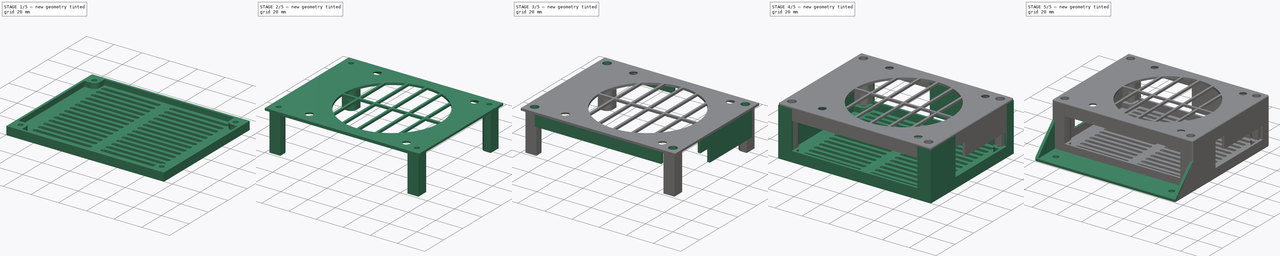
[diagram: build sequence overview — one tinted view per stage of 5, left to right]
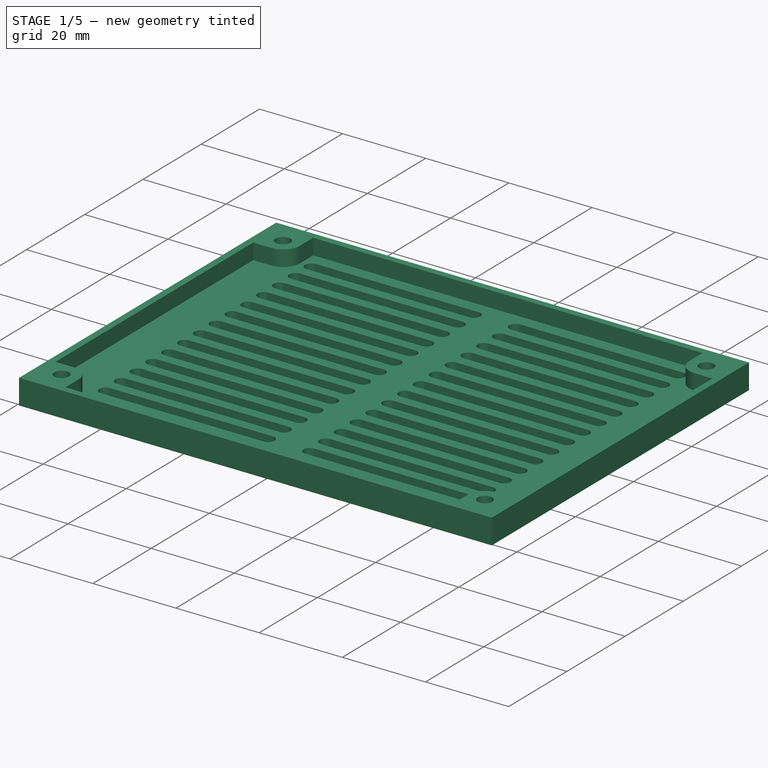
[diagram: stage 1 of 5 — iso view after this stage's code; geometry added in this stage tinted green]
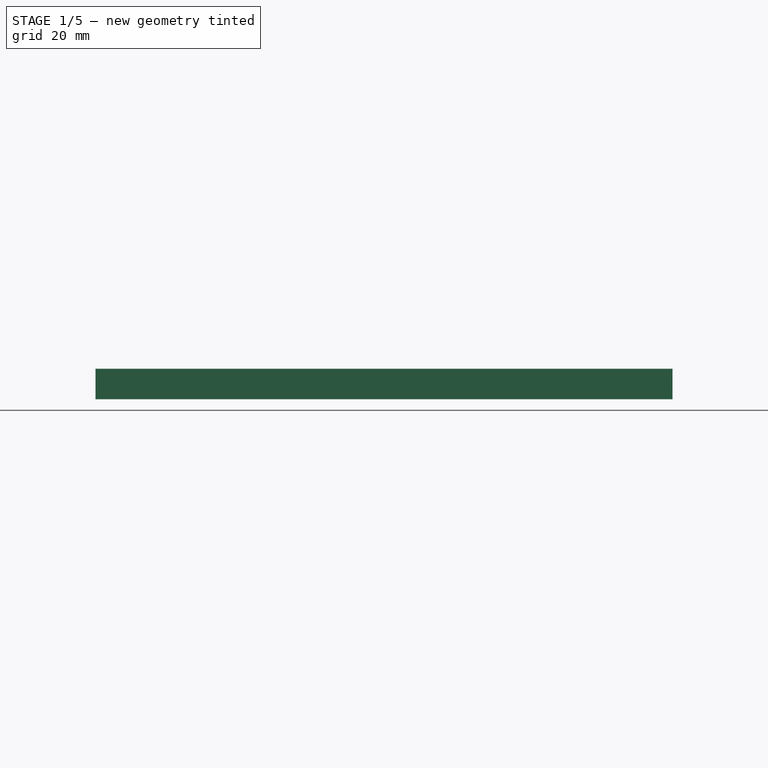
[diagram: stage 1 of 5 — front view after this stage's code; geometry added in this stage tinted green]
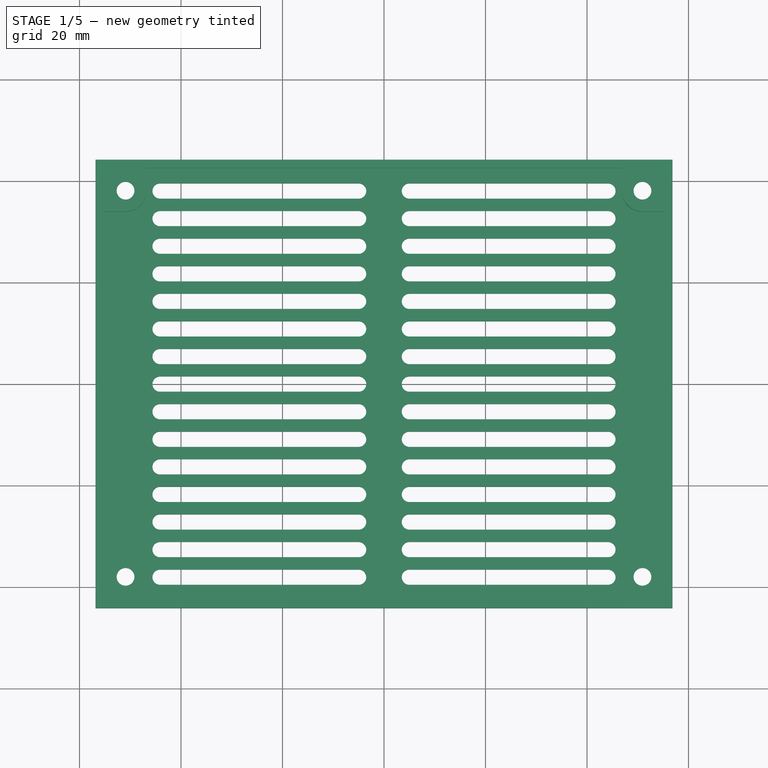
[diagram: stage 1 of 5 — top view after this stage's code; geometry added in this stage tinted green]
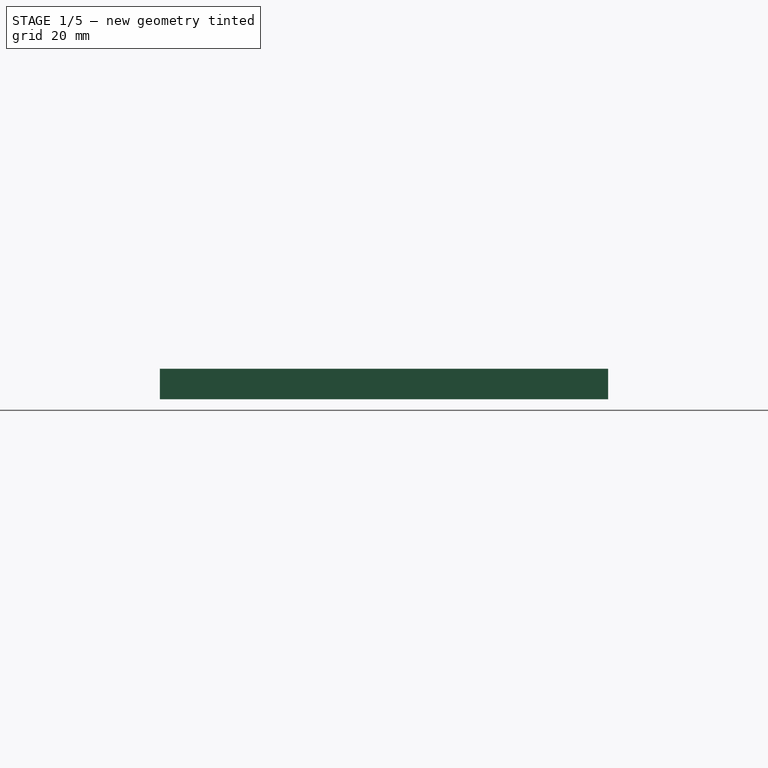
[diagram: stage 1 of 5 — right view after this stage's code; geometry added in this stage tinted green]
FCSTD DOCUMENT  (FreeCAD 0.18.3R)
Label: SKRCaseV6
License: All rights reserved
LicenseURL: http://en.wikipedia.org/wiki/All_rights_reserved
objects: Sketcher::SketchObject×21, PartDesign::Pad×13, PartDesign::Pocket×7, PartDesign::ShapeBinder×5, Spreadsheet::Sheet×2, PartDesign::Fillet×2, PartDesign::Body×2, PartDesign::LinearPattern×1, PartDesign::Chamfer×1, App::Part×1
note: 72 computed .brp shape members not serialized (recipe doc carries the construction recipe); baked Part::Feature solids carry a one-line shape summary decoded from their .brp

FEATURE [Sketcher::SketchObject] Sketch  label="B_Template_XY"
  MapMode = 5
  Support = -> [XY_Plane001]
  expr: Constraints[74] = Constraints.Rnut + 0.8mm
  expr: Constraints.Rnut = Screws.M3NutRadius
  sketch-geometry (62):
    g0: LineSegment StartX=-54.835 StartY=42.15 StartZ=0 EndX=54.835 EndY=42.15 EndZ=0
    g1: LineSegment StartX=54.835 StartY=42.15 StartZ=0 EndX=54.835 EndY=-42.15 EndZ=0
    g2: LineSegment StartX=54.835 StartY=-42.15 StartZ=0 EndX=-54.835 EndY=-42.15 EndZ=0
    g3: LineSegment StartX=-54.835 StartY=-42.15 StartZ=0 EndX=-54.835 EndY=42.15 EndZ=0
    g4: LineSegment StartX=-54.835 StartY=0 StartZ=0 EndX=54.835 EndY=0 EndZ=0
    g5: LineSegment StartX=0 StartY=42.15 StartZ=0 EndX=0 EndY=-42.15 EndZ=0
    g6: LineSegment StartX=-55.235 StartY=42.55 StartZ=0 EndX=55.235 EndY=42.55 EndZ=0
    g7: LineSegment StartX=55.235 StartY=42.55 StartZ=0 EndX=55.235 EndY=-42.55 EndZ=0
    g8: LineSegment StartX=55.235 StartY=-42.55 StartZ=0 EndX=-55.235 EndY=-42.55 EndZ=0
    g9: LineSegment StartX=-55.235 StartY=-42.55 StartZ=0 EndX=-55.235 EndY=42.55 EndZ=0
    g10: LineSegment [constr] StartX=0 StartY=42.15 StartZ=0 EndX=0 EndY=42.55 EndZ=0
    g11: LineSegment [constr] StartX=-54.835 StartY=0 StartZ=0 EndX=-55.235 EndY=0 EndZ=0
    g12: LineSegment [constr] StartX=0 StartY=-42.15 StartZ=0 EndX=0 EndY=-42.55 EndZ=0
    g13: LineSegment [constr] StartX=54.835 StartY=0 StartZ=0 EndX=55.235 EndY=0 EndZ=0
    g14: LineSegment StartX=-56.855 StartY=44.17 StartZ=0 EndX=56.855 EndY=44.17 EndZ=0
    g15: LineSegment StartX=56.855 StartY=44.17 StartZ=0 EndX=56.855 EndY=-44.17 EndZ=0
    g16: LineSegment StartX=56.855 StartY=-44.17 StartZ=0 EndX=-56.855 EndY=-44.17 EndZ=0
    g17: LineSegment StartX=-56.855 StartY=-44.17 StartZ=0 EndX=-56.855 EndY=44.17 EndZ=0
    g18: LineSegment [constr] StartX=0 StartY=42.55 StartZ=0 EndX=0 EndY=44.17 EndZ=0
    g19: LineSegment [constr] StartX=55.235 StartY=0 StartZ=0 EndX=56.855 EndY=0 EndZ=0
    g20: LineSegment [constr] StartX=0 StartY=-42.55 StartZ=0 EndX=0 EndY=-44.17 EndZ=0
    g21: LineSegment [constr] StartX=-55.235 StartY=0 StartZ=0 EndX=-56.855 EndY=0 EndZ=0
    g22: Circle CenterX=-50.925 CenterY=38.05 CenterZ=0 NormalX=0 NormalY=0 NormalZ=1 AngleXU=0 Radius=3.3
    g23: Circle CenterX=50.925 CenterY=38.05 CenterZ=0 NormalX=0 NormalY=0 NormalZ=1 AngleXU=0 Radius=3.3
    g24: Circle CenterX=50.925 CenterY=-38.05 CenterZ=0 NormalX=0 NormalY=0 NormalZ=1 AngleXU=0 Radius=3.3
    g25: Circle CenterX=-50.925 CenterY=-38.05 CenterZ=0 NormalX=0 NormalY=0 NormalZ=1 AngleXU=0 Radius=3.3
    g26: ArcOfCircle CenterX=-50.925 CenterY=38.05 CenterZ=0 NormalX=0 NormalY=0 NormalZ=1 AngleXU=0 Radius=4.1 StartAngle=4.71239 EndAngle=6.28319
    g27: ArcOfCircle CenterX=50.925 CenterY=38.05 CenterZ=0 NormalX=0 NormalY=0 NormalZ=1 AngleXU=0 Radius=4.1 StartAngle=3.14159 EndAngle=4.71239
    g28: ArcOfCircle CenterX=50.925 CenterY=-38.05 CenterZ=0 NormalX=0 NormalY=0 NormalZ=1 AngleXU=0 Radius=4.1 StartAngle=1.5708 EndAngle=3.14159
    g29: ArcOfCircle CenterX=-50.925 CenterY=-38.05 CenterZ=0 NormalX=0 NormalY=0 NormalZ=1 AngleXU=0 Radius=4.1 StartAngle=2e-16 EndAngle=1.5708
    g30: LineSegment [constr] StartX=-50.925 StartY=38.05 StartZ=0 EndX=-50.925 EndY=33.95 EndZ=0
    g31: LineSegment [constr] StartX=-50.925 StartY=38.05 StartZ=0 EndX=-46.825 EndY=38.05 EndZ=0
    g32: LineSegment [constr] StartX=50.925 StartY=38.05 StartZ=0 EndX=46.825 EndY=38.05 EndZ=0
    g33: LineSegment [constr] StartX=50.925 StartY=38.05 StartZ=0 EndX=50.925 EndY=33.95 EndZ=0
    g34: LineSegment [constr] StartX=50.925 StartY=-38.05 StartZ=0 EndX=50.925 EndY=-33.95 EndZ=0
    g35: LineSegment [constr] StartX=50.925 StartY=-38.05 StartZ=0 EndX=46.825 EndY=-38.05 EndZ=0
    g36: LineSegment [constr] StartX=-50.925 StartY=-38.05 StartZ=0 EndX=-50.925 EndY=-33.95 EndZ=0
    g37: LineSegment [constr] StartX=-50.925 StartY=-38.05 StartZ=0 EndX=-46.825 EndY=-38.05 EndZ=0
    g38: LineSegment StartX=-50.925 StartY=-33.95 StartZ=0 EndX=-55.235 EndY=-33.95 EndZ=0
    g39: LineSegment StartX=-46.825 StartY=-38.05 StartZ=0 EndX=-46.825 EndY=-42.55 EndZ=0
    g40: LineSegment StartX=46.825 StartY=-38.05 StartZ=0 EndX=46.825 EndY=-42.55 EndZ=0
    g41: LineSegment StartX=50.925 StartY=-33.95 StartZ=0 EndX=55.235 EndY=-33.95 EndZ=0
    g42: LineSegment StartX=50.925 StartY=33.95 StartZ=0 EndX=55.235 EndY=33.95 EndZ=0
    g43: LineSegment StartX=46.825 StartY=38.05 StartZ=0 EndX=46.825 EndY=42.55 EndZ=0
    g44: LineSegment StartX=-46.825 StartY=38.05 StartZ=0 EndX=-46.825 EndY=42.55 EndZ=0
    g45: LineSegment StartX=-50.925 StartY=33.95 StartZ=0 EndX=-55.235 EndY=33.95 EndZ=0
    g46: LineSegment StartX=-34.175 StartY=40 StartZ=0 EndX=45.825 EndY=40 EndZ=0
    g47: LineSegment StartX=45.825 StartY=40 StartZ=0 EndX=45.825 EndY=-40 EndZ=0
    g48: LineSegment StartX=45.825 StartY=-40 StartZ=0 EndX=-34.175 EndY=-40 EndZ=0
    g49: LineSegment StartX=-34.175 StartY=-40 StartZ=0 EndX=-34.175 EndY=40 EndZ=0
    g50: LineSegment [constr] StartX=-34.175 StartY=40 StartZ=0 EndX=45.825 EndY=-40 EndZ=0
    g51: LineSegment [constr] StartX=-34.175 StartY=-40 StartZ=0 EndX=45.825 EndY=40 EndZ=0
    g52: Circle CenterX=5.825 CenterY=2e-16 CenterZ=0 NormalX=0 NormalY=0 NormalZ=1 AngleXU=0 Radius=36
    g53: LineSegment [constr] StartX=-29.925 StartY=35.75 StartZ=0 EndX=41.575 EndY=35.75 EndZ=0
    g54: LineSegment [constr] StartX=41.575 StartY=35.75 StartZ=0 EndX=41.575 EndY=-35.75 EndZ=0
    g55: LineSegment [constr] StartX=41.575 StartY=-35.75 StartZ=0 EndX=-29.925 EndY=-35.75 EndZ=0
    g56: LineSegment [constr] StartX=-29.925 StartY=-35.75 StartZ=0 EndX=-29.925 EndY=35.75 EndZ=0
    g57: Circle CenterX=-29.925 CenterY=35.75 CenterZ=0 NormalX=0 NormalY=0 NormalZ=1 AngleXU=0 Radius=2.65
    g58: Circle CenterX=41.575 CenterY=35.75 CenterZ=0 NormalX=0 NormalY=0 NormalZ=1 AngleXU=0 Radius=2.65
    g59: Circle CenterX=41.575 CenterY=-35.75 CenterZ=0 NormalX=0 NormalY=0 NormalZ=1 AngleXU=0 Radius=2.65
    g60: Circle CenterX=-29.925 CenterY=-35.75 CenterZ=0 NormalX=0 NormalY=0 NormalZ=1 AngleXU=0 Radius=2.65
    g61: GeomPoint X=0 Y=0 Z=0
  constraints (173):
    c: Coincident(g0,g1)
    c: Coincident(g1,g2)
    c: Coincident(g2,g3)
    c: Coincident(g3,g0)
    c: Horizontal(g0)
    c: Horizontal(g2)
    c: Vertical(g1)
    c: Vertical(g3)
    c: DistanceX(g0,g0) = 109.67
    c: DistanceY(g3,g3) = 84.3
    c: PointOnObject(g4,g3)
    c: PointOnObject(g4,g1)
    c: PointOnObject(g5,g2)
    c: PointOnObject(g5,g0)
    c: Symmetric(g0,g0,g5)
    c: Symmetric(g2,g0,g4)
    c: Coincident(g6,g7)
    c: Coincident(g7,g8)
    c: Coincident(g8,g9)
    c: Coincident(g9,g6)
    c: Horizontal(g6)
    c: Horizontal(g8)
    c: Vertical(g7)
    c: Vertical(g9)
    c: Coincident(g10,g5)
    c: PointOnObject(g10,g6)
    c: Vertical(g10)
    c: Coincident(g11,g4)
    c: PointOnObject(g11,g9)
    c: Horizontal(g11)
    c: Coincident(g12,g5)
    c: PointOnObject(g12,g8)
    c: Vertical(g12)
    c: Coincident(g13,g4)
    c: PointOnObject(g13,g7)
    c: Horizontal(g13)
    c: Equal(g10,g11)
    c: Equal(g11,g12)
    c: Equal(g12,g13)
    c: DistanceX(g6,g0) = 0.4
    c: Coincident(g14,g15)
    c: Coincident(g15,g16)
    c: Coincident(g16,g17)
    c: Coincident(g17,g14)
    c: Horizontal(g14)
    c: Horizontal(g16)
    c: Vertical(g15)
    c: Vertical(g17)
    c: Coincident(g18,g10)
    c: PointOnObject(g18,g14)
    c: Vertical(g18)
    c: Coincident(g19,g13)
    c: PointOnObject(g19,g15)
    c: Horizontal(g19)
    c: Coincident(g20,g12)
    c: PointOnObject(g20,g16)
    c: Vertical(g20)
    c: Coincident(g21,g11)
    c: PointOnObject(g21,g17)
    c: Horizontal(g21)
    c: Equal(g18,g19)
    c: Equal(g19,g20)
    c: Equal(g20,g21)
    c: DistanceX(g14,g6) = 1.62  'WallThickness'
    c: Equal(g22,g23)
    c: Equal(g23,g24)
    c: Equal(g24,g25)
    c: Radius(g22) = 3.3  'Rnut'
    c: Symmetric(g22,g23,g5)
    c: Symmetric(g25,g24,g5)
    c: Symmetric(g25,g22,g4)
    c: DistanceX(g22,g23) = 101.85
    c: DistanceY(g25,g22) = 76.1  'ScrewShort'
    c: Coincident(g26,g22)
    c: Radius(g26) = 4.1
    c: Coincident(g27,g23)
    c: Coincident(g28,g24)
    c: Coincident(g29,g25)
    c: Equal(g26,g27)
    c: Equal(g27,g28)
    c: Equal(g28,g29)
    c: Coincident(g30,g26)
    c: Vertical(g30)
    c: Coincident(g31,g22)
    c: Coincident(g31,g26)
    c: Horizontal(g31)
    c: Coincident(g22,g30)
    c: Coincident(g32,g23)
    c: Coincident(g32,g27)
    c: Horizontal(g32)
    c: Coincident(g33,g23)
    c: Coincident(g33,g27)
    c: Vertical(g33)
    c: Coincident(g34,g24)
    c: Coincident(g34,g28)
    c: Vertical(g34)
    c: Coincident(g35,g24)
    c: Coincident(g35,g28)
    c: Horizontal(g35)
    c: Coincident(g36,g25)
    c: Coincident(g36,g29)
    c: Coincident(g37,g25)
    c: Coincident(g37,g29)
    c: Horizontal(g37)
    c: Vertical(g36)
    c: Coincident(g38,g29)
    c: Horizontal(g38)
    c: Coincident(g39,g29)
    c: Vertical(g39)
    c: Coincident(g40,g28)
    c: Vertical(g40)
    c: Coincident(g41,g28)
    c: Horizontal(g41)
    c: Coincident(g42,g27)
    c: Horizontal(g42)
    c: Coincident(g43,g27)
    c: Vertical(g43)
    c: Coincident(g44,g26)
    c: Vertical(g44)
    c: Coincident(g45,g26)
    c: Horizontal(g45)
    c: Coincident(g46,g47)
    c: Coincident(g47,g48)
    c: Coincident(g48,g49)
    c: Coincident(g49,g46)
    c: Horizontal(g46)
    c: Horizontal(g48)
    c: Vertical(g47)
    c: Equal(g46,g47)
    c: DistanceX(g46,g46) = 80
    c: Symmetric(g46,g48,g4)
    c: Coincident(g50,g46)
    c: Coincident(g50,g47)
    c: Coincident(g51,g48)
    c: Coincident(g51,g46)
    c: PointOnObject(g52,g50)
    c: PointOnObject(g52,g51)
    c: Radius(g52) = 36
    c: Coincident(g53,g54)
    c: Coincident(g54,g55)
    c: Coincident(g55,g56)
    c: Coincident(g56,g53)
    c: Horizontal(g53)
    c: Horizontal(g55)
    c: Vertical(g54)
    c: Vertical(g56)
    c: PointOnObject(g53,g50)
    c: PointOnObject(g54,g50)
    c: PointOnObject(g53,g51)
    c: DistanceX(g53,g53) = 71.5
    c: Coincident(g57,g53)
    c: Coincident(g58,g53)
    c: Coincident(g59,g54)
    c: Coincident(g60,g55)
    c: Equal(g57,g58)
    c: Equal(g58,g59)
    c: Equal(g59,g60)
    c: Radius(g57) = 2.65
    c: PointOnObject(g61,g5)
    c: PointOnObject(g61,g4)
    c: Coincident(g61,g-1)  '__ANCHOR__'
    c: PointOnObject(g45,g9)
    c: PointOnObject(g44,g6)
    c: PointOnObject(g43,g6)
    c: PointOnObject(g42,g7)
    c: PointOnObject(g40,g8)
    c: PointOnObject(g41,g7)
    c: PointOnObject(g38,g9)
    c: PointOnObject(g39,g8)
    c: DistanceX(g46,g43) = 1
    c: DistanceX(g14,g14) = 113.71  'Width'
    c: DistanceY(g17,g17) = 88.34  'Length'
    c: DistanceY(g0,g6) = 0.4  'PcbTolerance'
FEATURE [Spreadsheet::Sheet] Spreadsheet
  cells = B2=PcbThickness; C2(PcbThickness)==1.7mm
FEATURE [Spreadsheet::Sheet] Spreadsheet001  label="Screws"
  cells = B2=M3Radius; C2(M3Radius)==1.75mm; B3=M3HeadRadius; C3(M3HeadRadius)==2.9mm; B4=M3HeadHeight; C4(M3HeadHeight)==3mm; B5=M3WasherRadius; C5(M3WasherRadius)==3.6mm; B6=M3WasherHeight; C6(M3WasherHeight)==0.5mm; B7=M3NutRadius; C7(M3NutRadius)==3.3mm; B8=M3NutHeight; C8(M3NutHeight)==2.6mm; B9=M3NylocNutHeight; C9(M3NylocNutHeight)==4.1mm; B10=M3NutDuctWidth; C10(M3NutDuctWidth)==5.6mm; B11=M4Radius; C11(M4Radius)==2.2mm; B12=M4HeadRadius; C12(M4HeadRadius)==3.75mm; B13=M4HeadHeight; C13(M4HeadHeight)==4mm; B14=M4WasherRadius; C14(M4WasherRadius)==4.65mm; B15=M4NutRadius; C15(M4NutRadius)==4.2mm; B16=M4NutHeight; C16(M4NutHeight)==3.3mm; B17=M5Radius; C17(M5Radius)==2.66mm; B18=M5HeadRadius; C18(M5HeadRadius)==4.5mm; B19=M5HeadHeight; C19(M5HeadHeight)==5mm; B20=M5NutRadius; C20(M5NutRadius)==4.75mm; B21=M5NutHeight; C21(M5NutHeight)==4mm; B23=M6Radius; C23(M6Radius)==3.15mm; B24=M6HeadRadius; C24(M6HeadRadius)==5.5mm; B31=
FEATURE [Sketcher::SketchObject] Sketch001  label="B_Base"
  ExternalGeometry = -> [Sketch]
  MapMode = 5
  Support = -> [XY_Plane001]
  expr: Constraints[17] = Screws.M3Radius
  sketch-geometry (8):
    g0: LineSegment StartX=-56.855 StartY=44.17 StartZ=0 EndX=56.855 EndY=44.17 EndZ=0
    g1: LineSegment StartX=56.855 StartY=44.17 StartZ=0 EndX=56.855 EndY=-44.17 EndZ=0
    g2: LineSegment StartX=56.855 StartY=-44.17 StartZ=0 EndX=-56.855 EndY=-44.17 EndZ=0
    g3: LineSegment StartX=-56.855 StartY=-44.17 StartZ=0 EndX=-56.855 EndY=44.17 EndZ=0
    g4: Circle CenterX=-50.925 CenterY=38.05 CenterZ=0 NormalX=0 NormalY=0 NormalZ=1 AngleXU=0 Radius=1.75
    g5: Circle CenterX=50.925 CenterY=38.05 CenterZ=0 NormalX=0 NormalY=0 NormalZ=1 AngleXU=0 Radius=1.75
    g6: Circle CenterX=50.925 CenterY=-38.05 CenterZ=0 NormalX=0 NormalY=0 NormalZ=1 AngleXU=0 Radius=1.75
    g7: Circle CenterX=-50.925 CenterY=-38.05 CenterZ=0 NormalX=0 NormalY=0 NormalZ=1 AngleXU=0 Radius=1.75
  constraints (18):
    c: Coincident(g0,g1)
    c: Coincident(g1,g2)
    c: Coincident(g2,g3)
    c: Coincident(g3,g0)
    c: Horizontal(g0)
    c: Horizontal(g2)
    c: Vertical(g1)
    c: Vertical(g3)
    c: Coincident(g0,g-3)
    c: Coincident(g1,g-4)
    c: Coincident(g4,g-7)
    c: Coincident(g5,g-8)
    c: Coincident(g6,g-9)
    c: Coincident(g7,g-10)
    c: Equal(g4,g5)
    c: Equal(g5,g6)
    c: Equal(g6,g7)
    c: Radius(g4) = 1.75
FEATURE [PartDesign::Pad] Pad  label="B_Base_"
  Length = 2.2
  Length2 = 100
  Profile = -> Sketch001
  Type = 0
FEATURE [Sketcher::SketchObject] Sketch002  label="B_Breathing"
  ExternalGeometry = -> [Sketch]
  MapMode = 5
  Support = -> [XY_Plane001]
  sketch-geometry (10):
    g0: LineSegment [constr] StartX=-50.925 StartY=38.05 StartZ=0 EndX=50.925 EndY=38.05 EndZ=0
    g1: ArcOfCircle CenterX=-44.125 CenterY=38.05 CenterZ=0 NormalX=0 NormalY=0 NormalZ=1 AngleXU=0 Radius=1.5 StartAngle=1.5708 EndAngle=4.71239
    g2: ArcOfCircle CenterX=-5 CenterY=38.05 CenterZ=0 NormalX=0 NormalY=0 NormalZ=1 AngleXU=0 Radius=1.5 StartAngle=4.71239 EndAngle=7.85398
    g3: LineSegment StartX=-44.125 StartY=36.55 StartZ=0 EndX=-5 EndY=36.55 EndZ=0
    g4: LineSegment StartX=-44.125 StartY=39.55 StartZ=0 EndX=-5 EndY=39.55 EndZ=0
    g5: ArcOfCircle CenterX=5 CenterY=38.05 CenterZ=0 NormalX=0 NormalY=0 NormalZ=1 AngleXU=0 Radius=1.5 StartAngle=1.5708 EndAngle=4.71239
    g6: ArcOfCircle CenterX=44.125 CenterY=38.05 CenterZ=0 NormalX=0 NormalY=0 NormalZ=1 AngleXU=0 Radius=1.5 StartAngle=4.71239 EndAngle=7.85398
    g7: LineSegment StartX=5 StartY=36.55 StartZ=0 EndX=44.125 EndY=36.55 EndZ=0
    g8: LineSegment StartX=5 StartY=39.55 StartZ=0 EndX=44.125 EndY=39.55 EndZ=0
    g9: GeomPoint X=-45.625 Y=38.05 Z=0
  constraints (23):
    c: Coincident(g0,g-3)
    c: Coincident(g0,g-4)
    c: Tangent(g1,g4) = 1.5708
    c: Tangent(g1,g3) = -1.5708
    c: Tangent(g3,g2) = -1.5708
    c: Tangent(g4,g2) = 1.5708
    c: Horizontal(g3)
    c: Equal(g1,g2)
    c: PointOnObject(g1,g0)
    c: Tangent(g5,g8) = 1.5708
    c: Tangent(g5,g7) = -1.5708
    c: Tangent(g7,g6) = -1.5708
    c: Tangent(g8,g6) = 1.5708
    c: Horizontal(g7)
    c: Equal(g5,g6)
    c: Equal(g2,g5)
    c: Radius(g1) = 1.5
    c: Equal(g4,g8)
    c: DistanceX(g2,g5) = 10
    c: PointOnObject(g9,g1)
    c: PointOnObject(g9,g0)
    c: DistanceX(g-6,g9) = 1.2
    c: Symmetric(g2,g5,g-7)
FEATURE [PartDesign::Pocket] Pocket  label="B_Breathing_"
  BaseFeature = -> Pad
  Length = 5
  Length2 = 100
  Profile = -> Sketch002
  Reversed = true
  Type = 1
FEATURE [PartDesign::LinearPattern] LinearPattern
  BaseFeature = -> Pocket
  Direction = -> Sketch002 [V_Axis]
  Length = 76.1
  Occurrences = 15
  Originals = -> [Pocket]
  Reversed = true
  expr: Length = B_Template_XY.Constraints.ScrewShort
FEATURE [Sketcher::SketchObject] Sketch003  label="B_PcbSupport"
  AttachmentOffset = pos=(0,0,2.2) rot=(0,0,1;0rad)
  ExternalGeometry = -> [Sketch]
  MapMode = 5
  Placement = pos=(0,0,2.2) rot=(0,0,1;0rad)
  Support = -> [XY_Plane001]
  expr: Constraints[53] = Screws.M3Radius
  expr: AttachmentOffset.Base.z = B_Base_.Length
  sketch-geometry (24):
    g0: LineSegment StartX=-56.855 StartY=44.17 StartZ=0 EndX=56.855 EndY=44.17 EndZ=0
    g1: LineSegment StartX=56.855 StartY=44.17 StartZ=0 EndX=56.855 EndY=-44.17 EndZ=0
    g2: LineSegment StartX=56.855 StartY=-44.17 StartZ=0 EndX=-56.855 EndY=-44.17 EndZ=0
    g3: LineSegment StartX=-56.855 StartY=-44.17 StartZ=0 EndX=-56.855 EndY=44.17 EndZ=0
    g4: LineSegment StartX=-46.825 StartY=42.55 StartZ=0 EndX=46.825 EndY=42.55 EndZ=0
    g5: LineSegment StartX=55.235 StartY=33.95 StartZ=0 EndX=55.235 EndY=-33.95 EndZ=0
    g6: LineSegment StartX=-55.235 StartY=33.95 StartZ=0 EndX=-55.235 EndY=-33.95 EndZ=0
    g7: LineSegment StartX=-46.825 StartY=-42.55 StartZ=0 EndX=46.825 EndY=-42.55 EndZ=0
    g8: LineSegment StartX=-46.825 StartY=42.55 StartZ=0 EndX=-46.825 EndY=38.05 EndZ=0
    g9: LineSegment StartX=-55.235 StartY=33.95 StartZ=0 EndX=-50.925 EndY=33.95 EndZ=0
    g10: LineSegment StartX=46.825 StartY=42.55 StartZ=0 EndX=46.825 EndY=38.05 EndZ=0
    g11: LineSegment StartX=55.235 StartY=33.95 StartZ=0 EndX=50.925 EndY=33.95 EndZ=0
    g12: LineSegment StartX=50.925 StartY=-33.95 StartZ=0 EndX=55.235 EndY=-33.95 EndZ=0
    g13: LineSegment StartX=46.825 StartY=-42.55 StartZ=0 EndX=46.825 EndY=-38.05 EndZ=0
    g14: LineSegment StartX=-55.235 StartY=-33.95 StartZ=0 EndX=-50.925 EndY=-33.95 EndZ=0
    g15: LineSegment StartX=-46.825 StartY=-38.05 StartZ=0 EndX=-46.825 EndY=-42.55 EndZ=0
    g16: ArcOfCircle CenterX=-50.925 CenterY=-38.05 CenterZ=0 NormalX=0 NormalY=0 NormalZ=1 AngleXU=0 Radius=4.1 StartAngle=0 EndAngle=1.5708
    g17: ArcOfCircle CenterX=-50.925 CenterY=38.05 CenterZ=0 NormalX=0 NormalY=0 NormalZ=1 AngleXU=0 Radius=4.1 StartAngle=4.71239 EndAngle=6.28319
    g18: ArcOfCircle CenterX=50.925 CenterY=38.05 CenterZ=0 NormalX=0 NormalY=0 NormalZ=1 AngleXU=0 Radius=4.1 StartAngle=3.14159 EndAngle=4.71239
    g19: ArcOfCircle CenterX=50.925 CenterY=-38.05 CenterZ=0 NormalX=0 NormalY=0 NormalZ=1 AngleXU=0 Radius=4.1 StartAngle=1.5708 EndAngle=3.14159
    g20: Circle CenterX=-50.925 CenterY=38.05 CenterZ=0 NormalX=0 NormalY=0 NormalZ=1 AngleXU=0 Radius=1.75
    g21: Circle CenterX=50.925 CenterY=38.05 CenterZ=0 NormalX=0 NormalY=0 NormalZ=1 AngleXU=0 Radius=1.75
    g22: Circle CenterX=50.925 CenterY=-38.05 CenterZ=0 NormalX=0 NormalY=0 NormalZ=1 AngleXU=0 Radius=1.75
    g23: Circle CenterX=-50.925 CenterY=-38.05 CenterZ=0 NormalX=0 NormalY=0 NormalZ=1 AngleXU=0 Radius=1.75
  constraints (54):
    c: Coincident(g0,g1)
    c: Coincident(g1,g2)
    c: Coincident(g2,g3)
    c: Coincident(g3,g0)
    c: Horizontal(g0)
    c: Horizontal(g2)
    c: Vertical(g1)
    c: Vertical(g3)
    c: Coincident(g0,g-3)
    c: Coincident(g1,g-4)
    c: Coincident(g4,g-8)
    c: Coincident(g4,g-10)
    c: Coincident(g5,g-12)
    c: Coincident(g5,g-14)
    c: Coincident(g6,g-9)
    c: Coincident(g6,g-16)
    c: Coincident(g7,g-18)
    c: Coincident(g7,g-15)
    c: Coincident(g8,g4)
    c: Coincident(g8,g-8)
    c: Coincident(g9,g6)
    c: Coincident(g9,g-9)
    c: Coincident(g10,g4)
    c: Coincident(g10,g-11)
    c: Coincident(g11,g5)
    c: Coincident(g11,g-12)
    c: Coincident(g12,g-14)
    c: Coincident(g12,g5)
    c: Coincident(g13,g7)
    c: Coincident(g13,g-15)
    c: Coincident(g14,g6)
    c: Coincident(g14,g-17)
    c: Coincident(g15,g-18)
    c: Coincident(g15,g7)
    c: Coincident(g16,g-17)
    c: Coincident(g16,g14)
    c: Coincident(g16,g15)
    c: Coincident(g17,g-7)
    c: Coincident(g17,g9)
    c: Coincident(g17,g8)
    c: Coincident(g18,g-11)
    c: Coincident(g18,g10)
    c: Coincident(g18,g11)
    c: Coincident(g19,g-13)
    c: Coincident(g19,g12)
    c: Coincident(g19,g13)
    c: Coincident(g20,g17)
    c: Coincident(g21,g18)
    c: Coincident(g22,g19)
    c: Coincident(g23,g16)
    c: Equal(g20,g21)
    c: Equal(g21,g22)
    c: Equal(g22,g23)
    c: Radius(g20) = 1.75
FEATURE [PartDesign::Pad] Pad001  label="B_PcbSupport_"
  BaseFeature = -> LinearPattern
  Length = 3.82
  Length2 = 100
  Profile = -> Sketch003
  Type = 0
  expr: Length = 2.2mm + Sketch.Constraints.WallThickness
FEATURE [Sketcher::SketchObject] Sketch004  label="B_NutHoles"
  AttachmentOffset = pos=(0,0,4.4) rot=(0,0,1;0rad)
  ExternalGeometry = -> [Sketch]
  MapMode = 5
  Placement = pos=(0,0,4.4) rot=(0,0,1;0rad)
  Support = -> [XY_Plane001]
  expr: AttachmentOffset.Base.z = B_PcbSupport.Placement.Base.z + B_PcbSupport_.Length - B_Template_XY.Constraints.WallThickness
  sketch-geometry (28):
    g0: LineSegment StartX=-50.925 StartY=34.75 StartZ=0 EndX=-48.0671 EndY=36.4 EndZ=0
    g1: LineSegment StartX=-48.0671 StartY=36.4 StartZ=0 EndX=-48.0671 EndY=39.7 EndZ=0
    g2: LineSegment StartX=-48.0671 StartY=39.7 StartZ=0 EndX=-50.925 EndY=41.35 EndZ=0
    g3: LineSegment StartX=-50.925 StartY=41.35 StartZ=0 EndX=-53.7829 EndY=39.7 EndZ=0
    g4: LineSegment StartX=-53.7829 StartY=39.7 StartZ=0 EndX=-53.7829 EndY=36.4 EndZ=0
    g5: LineSegment StartX=-53.7829 StartY=36.4 StartZ=0 EndX=-50.925 EndY=34.75 EndZ=0
    g6: Circle [constr] CenterX=-50.925 CenterY=38.05 CenterZ=0 NormalX=0 NormalY=0 NormalZ=1 AngleXU=0 Radius=3.3
    g7: LineSegment StartX=50.925 StartY=34.75 StartZ=0 EndX=53.7829 EndY=36.4 EndZ=0
    g8: LineSegment StartX=53.7829 StartY=36.4 StartZ=0 EndX=53.7829 EndY=39.7 EndZ=0
    g9: LineSegment StartX=53.7829 StartY=39.7 StartZ=0 EndX=50.925 EndY=41.35 EndZ=0
    g10: LineSegment StartX=50.925 StartY=41.35 StartZ=0 EndX=48.0671 EndY=39.7 EndZ=0
    g11: LineSegment StartX=48.0671 StartY=39.7 StartZ=0 EndX=48.0671 EndY=36.4 EndZ=0
    g12: LineSegment StartX=48.0671 StartY=36.4 StartZ=0 EndX=50.925 EndY=34.75 EndZ=0
    g13: Circle [constr] CenterX=50.925 CenterY=38.05 CenterZ=0 NormalX=0 NormalY=0 NormalZ=1 AngleXU=0 Radius=3.3
    g14: LineSegment StartX=50.925 StartY=-41.35 StartZ=0 EndX=53.7829 EndY=-39.7 EndZ=0
    g15: LineSegment StartX=53.7829 StartY=-39.7 StartZ=0 EndX=53.7829 EndY=-36.4 EndZ=0
    g16: LineSegment StartX=53.7829 StartY=-36.4 StartZ=0 EndX=50.925 EndY=-34.75 EndZ=0
    g17: LineSegment StartX=50.925 StartY=-34.75 StartZ=0 EndX=48.0671 EndY=-36.4 EndZ=0
    g18: LineSegment StartX=48.0671 StartY=-36.4 StartZ=0 EndX=48.0671 EndY=-39.7 EndZ=0
    g19: LineSegment StartX=48.0671 StartY=-39.7 StartZ=0 EndX=50.925 EndY=-41.35 EndZ=0
    g20: Circle [constr] CenterX=50.925 CenterY=-38.05 CenterZ=0 NormalX=0 NormalY=0 NormalZ=1 AngleXU=0 Radius=3.3
    g21: LineSegment StartX=-50.925 StartY=-41.35 StartZ=0 EndX=-48.0671 EndY=-39.7 EndZ=0
    g22: LineSegment StartX=-48.0671 StartY=-39.7 StartZ=0 EndX=-48.0671 EndY=-36.4 EndZ=0
    g23: LineSegment StartX=-48.0671 StartY=-36.4 StartZ=0 EndX=-50.925 EndY=-34.75 EndZ=0
    g24: LineSegment StartX=-50.925 StartY=-34.75 StartZ=0 EndX=-53.7829 EndY=-36.4 EndZ=0
    g25: LineSegment StartX=-53.7829 StartY=-36.4 StartZ=0 EndX=-53.7829 EndY=-39.7 EndZ=0
    g26: LineSegment StartX=-53.7829 StartY=-39.7 StartZ=0 EndX=-50.925 EndY=-41.35 EndZ=0
    g27: Circle [constr] CenterX=-50.925 CenterY=-38.05 CenterZ=0 NormalX=0 NormalY=0 NormalZ=1 AngleXU=0 Radius=3.3
  constraints (64):
    c: Coincident(g0,g1)
    c: Coincident(g1,g2)
    c: Coincident(g2,g3)
    c: Coincident(g3,g4)
    c: Coincident(g4,g5)
    c: Coincident(g5,g0)
    c: Equal(g0, g1-g5) x5
    c: PointOnObject(g0,g6)
    c: PointOnObject(g1,g6)
    c: PointOnObject(g2,g6)
    c: PointOnObject(g3,g6)
    c: PointOnObject(g4,g6)
    c: PointOnObject(g5,g6)
    c: Coincident(g6,g-3)
    c: Coincident(g7,g8)
    c: Coincident(g8,g9)
    c: Coincident(g9,g10)
    c: Coincident(g10,g11)
    c: Coincident(g11,g12)
    c: Coincident(g12,g7)
    c: Equal(g7, g8-g12) x5
    c: PointOnObject(g7,g13)
    c: PointOnObject(g8,g13)
    c: PointOnObject(g9,g13)
    c: PointOnObject(g10,g13)
    c: PointOnObject(g11,g13)
    c: PointOnObject(g12,g13)
    c: Coincident(g13,g-4)
    c: Coincident(g14,g15)
    c: Coincident(g15,g16)
    c: Coincident(g16,g17)
    c: Coincident(g17,g18)
    c: Coincident(g18,g19)
    c: Coincident(g19,g14)
    c: Equal(g14, g15-g19) x5
    c: PointOnObject(g14,g20)
    c: PointOnObject(g15,g20)
    c: PointOnObject(g16,g20)
    c: PointOnObject(g17,g20)
    c: PointOnObject(g18,g20)
    c: PointOnObject(g19,g20)
    c: Coincident(g20,g-5)
    c: Coincident(g21,g22)
    c: Coincident(g22,g23)
    c: Coincident(g23,g24)
    c: Coincident(g24,g25)
    c: Coincident(g25,g26)
    c: Coincident(g26,g21)
    c: Equal(g21, g22-g26) x5
    c: PointOnObject(g21,g27)
    c: PointOnObject(g22,g27)
    c: PointOnObject(g23,g27)
    c: PointOnObject(g24,g27)
    c: PointOnObject(g25,g27)
    c: PointOnObject(g26,g27)
    c: Coincident(g27,g-6)
    c: Equal(g27,g6)
    c: Equal(g6,g13)
    c: Equal(g13,g20)
    c: Vertical(g4)
    c: Vertical(g8)
    c: Vertical(g15)
    c: Vertical(g22)
    c: Equal(g6,g-3)
FEATURE [PartDesign::Pocket] Pocket001  label="B_NutHoles_"
  BaseFeature = -> Pad001
  Length = 5
  Length2 = 100
  Profile = -> Sketch004
  Refine = true
  Type = 1
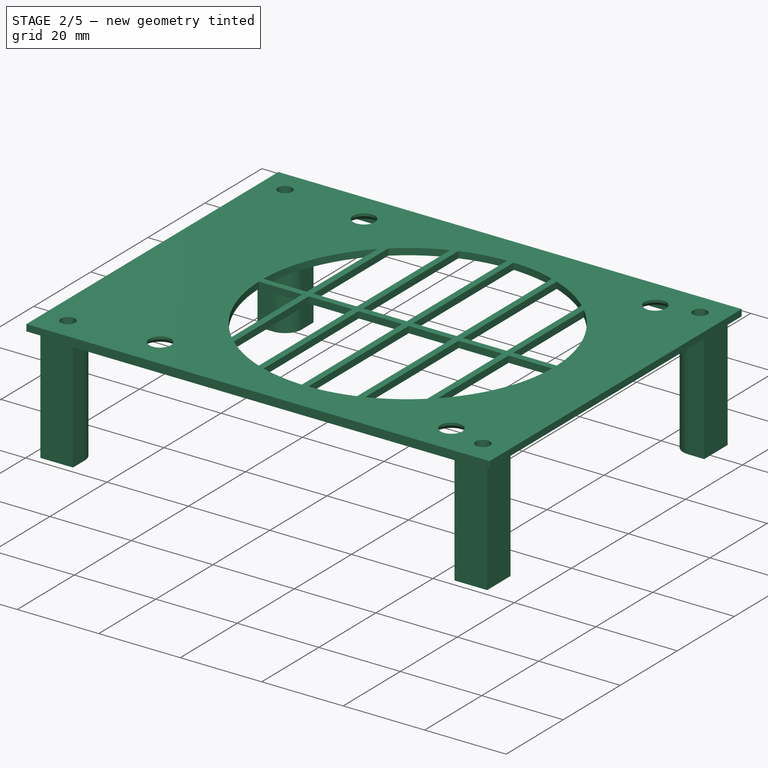
[diagram: stage 2 of 5 — iso view after this stage's code; geometry added in this stage tinted green]
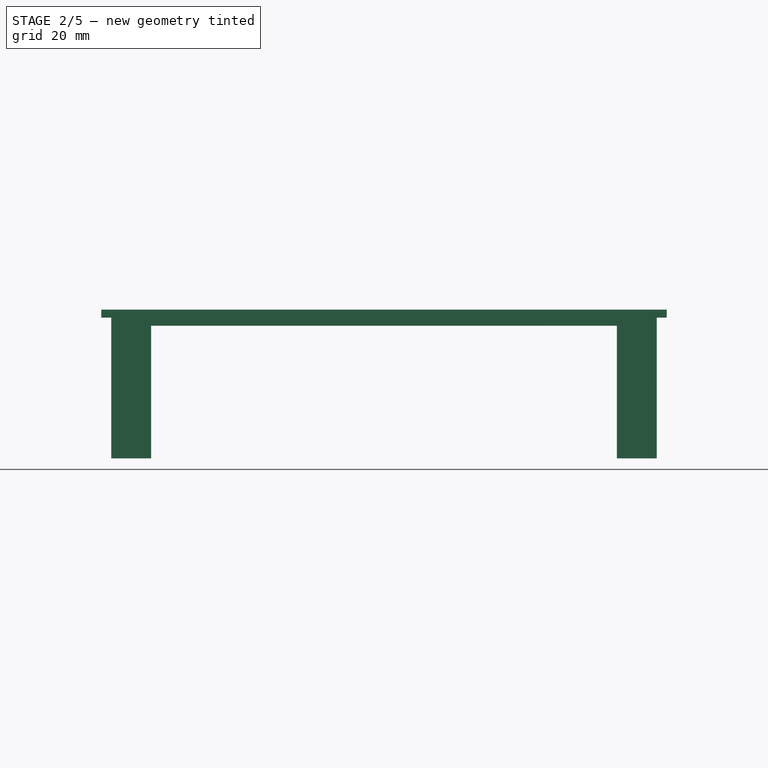
[diagram: stage 2 of 5 — front view after this stage's code; geometry added in this stage tinted green]
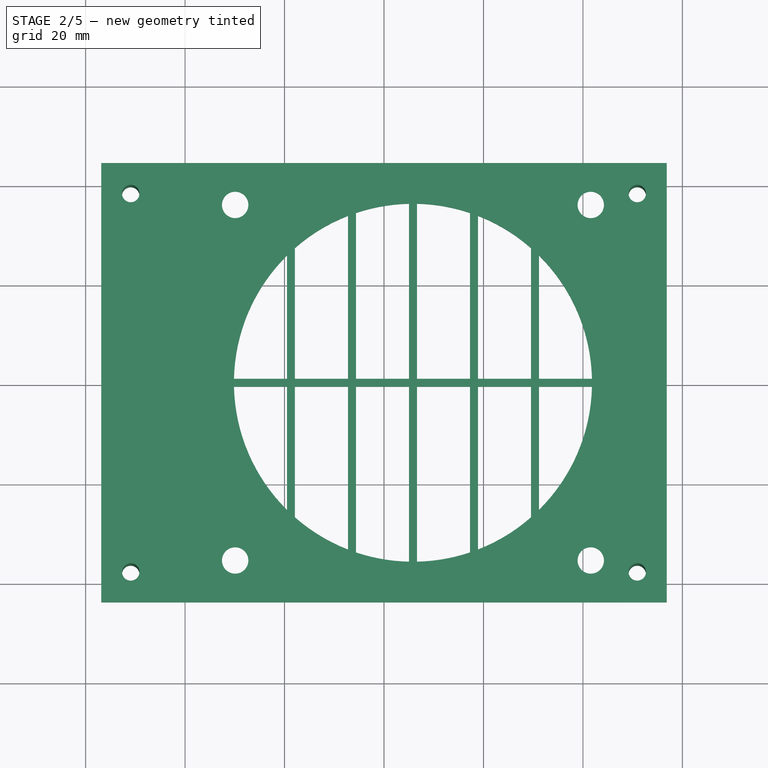
[diagram: stage 2 of 5 — top view after this stage's code; geometry added in this stage tinted green]
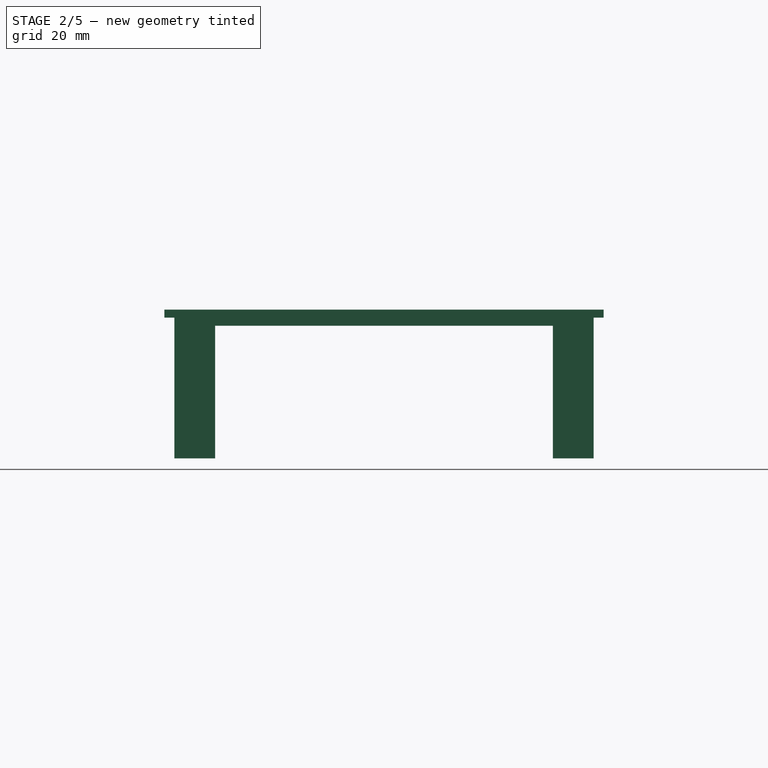
[diagram: stage 2 of 5 — right view after this stage's code; geometry added in this stage tinted green]
FEATURE [Sketcher::SketchObject] Sketch005  label="B_Walls"
  AttachmentOffset = pos=(0,0,6.02) rot=(0,0,1;0rad)
  ExternalGeometry = -> [Sketch]
  MapMode = 5
  Placement = pos=(0,0,6.02) rot=(0,0,1;0rad)
  Support = -> [XY_Plane001]
  expr: AttachmentOffset.Base.z = B_PcbSupport.Placement.Base.z + B_PcbSupport_.Length
  sketch-geometry (8):
    g0: LineSegment StartX=-56.855 StartY=44.17 StartZ=0 EndX=56.855 EndY=44.17 EndZ=0
    g1: LineSegment StartX=56.855 StartY=44.17 StartZ=0 EndX=56.855 EndY=-44.17 EndZ=0
    g2: LineSegment StartX=56.855 StartY=-44.17 StartZ=0 EndX=-56.855 EndY=-44.17 EndZ=0
    g3: LineSegment StartX=-56.855 StartY=-44.17 StartZ=0 EndX=-56.855 EndY=44.17 EndZ=0
    g4: LineSegment StartX=55.235 StartY=-42.55 StartZ=0 EndX=-55.235 EndY=-42.55 EndZ=0
    g5: LineSegment StartX=-55.235 StartY=-42.55 StartZ=0 EndX=-55.235 EndY=42.55 EndZ=0
    g6: LineSegment StartX=-55.235 StartY=42.55 StartZ=0 EndX=55.235 EndY=42.55 EndZ=0
    g7: LineSegment StartX=55.235 StartY=42.55 StartZ=0 EndX=55.235 EndY=-42.55 EndZ=0
  constraints (20):
    c: Coincident(g0,g1)
    c: Coincident(g1,g2)
    c: Coincident(g2,g3)
    c: Coincident(g3,g0)
    c: Horizontal(g0)
    c: Horizontal(g2)
    c: Vertical(g1)
    c: Vertical(g3)
    c: Coincident(g0,g-3)
    c: Coincident(g1,g-5)
    c: Coincident(g4,g5)
    c: Coincident(g5,g6)
    c: Coincident(g6,g7)
    c: Coincident(g7,g4)
    c: Horizontal(g4)
    c: Horizontal(g6)
    c: Vertical(g5)
    c: Vertical(g7)
    c: Coincident(g4,g-6)
    c: Coincident(g5,g-4)
FEATURE [PartDesign::Pad] Pad002  label="B_Walls_"
  BaseFeature = -> Pocket001
  Length = 30
  Length2 = 100
  Profile = -> Sketch005
  Refine = true
  Type = 0
  expr: Length = 30mm
FEATURE [PartDesign::Body] Body  label="Bottom"
  Group = -> [Sketch,Sketch001,Pad,Sketch002,Pocket,LinearPattern,Sketch003,Pad001,Sketch004,Pocket001,Sketch005,Pad002,Sketch006,Pocket002,Sketch007,Pocket003,Sketch008,Pocket004,Sketch009,Pocket005,Sketch010,Pad003,Sketch011,Pad004,Sketch012,Pad005,Fillet]
  Origin = -> Origin001
  Tip = -> Fillet
FEATURE [PartDesign::ShapeBinder] ShapeBinder  label="T_B_Template_XY"
  Support = -> [Sketch]
  TraceSupport = false
FEATURE [Sketcher::SketchObject] Sketch013  label="T_Base"
  AttachmentOffset = pos=(0,0,36.02) rot=(0,0,1;0rad)
  ExternalGeometry = -> [ShapeBinder]
  MapMode = 5
  Placement = pos=(0,0,36.02) rot=(0,0,1;0rad)
  Support = -> [XY_Plane002]
  expr: Constraints[17] = Screws.M3Radius
  expr: AttachmentOffset.Base.z = B_Walls.Placement.Base.z + B_Walls_.Length
  sketch-geometry (88):
    g0: LineSegment StartX=-56.855 StartY=44.17 StartZ=0 EndX=56.855 EndY=44.17 EndZ=0
    g1: LineSegment StartX=56.855 StartY=44.17 StartZ=0 EndX=56.855 EndY=-44.17 EndZ=0
    g2: LineSegment StartX=56.855 StartY=-44.17 StartZ=0 EndX=-56.855 EndY=-44.17 EndZ=0
    g3: LineSegment StartX=-56.855 StartY=-44.17 StartZ=0 EndX=-56.855 EndY=44.17 EndZ=0
    g4: Circle CenterX=-50.925 CenterY=38.05 CenterZ=0 NormalX=0 NormalY=0 NormalZ=1 AngleXU=0 Radius=1.75
    g5: Circle CenterX=50.925 CenterY=38.05 CenterZ=0 NormalX=0 NormalY=0 NormalZ=1 AngleXU=0 Radius=1.75
    g6: Circle CenterX=50.925 CenterY=-38.05 CenterZ=0 NormalX=0 NormalY=0 NormalZ=1 AngleXU=0 Radius=1.75
    g7: Circle CenterX=-50.925 CenterY=-38.05 CenterZ=0 NormalX=0 NormalY=0 NormalZ=1 AngleXU=0 Radius=1.75
    g8: Circle CenterX=-29.925 CenterY=35.75 CenterZ=0 NormalX=0 NormalY=0 NormalZ=1 AngleXU=0 Radius=2.65
    g9: Circle CenterX=41.575 CenterY=35.75 CenterZ=0 NormalX=0 NormalY=0 NormalZ=1 AngleXU=0 Radius=2.65
    g10: Circle CenterX=41.575 CenterY=-35.75 CenterZ=0 NormalX=0 NormalY=0 NormalZ=1 AngleXU=0 Radius=2.65
    g11: Circle CenterX=-29.925 CenterY=-35.75 CenterZ=0 NormalX=0 NormalY=0 NormalZ=1 AngleXU=0 Radius=2.65
    g12: LineSegment [constr] StartX=-30.175 StartY=44.17 StartZ=0 EndX=-30.175 EndY=-44.17 EndZ=0
    g13: LineSegment [constr] StartX=41.825 StartY=44.17 StartZ=0 EndX=41.825 EndY=-44.17 EndZ=0
    g14: LineSegment StartX=-19.5083 StartY=25.5778 StartZ=0 EndX=-19.5083 EndY=0.8 EndZ=0
    g15: LineSegment StartX=-17.9083 StartY=27.069 StartZ=0 EndX=-17.9083 EndY=-27.069 EndZ=0
    g16: ArcOfCircle CenterX=5.825 CenterY=2e-16 CenterZ=0 NormalX=0 NormalY=0 NormalZ=1 AngleXU=0 Radius=36 StartAngle=1.94224 EndAngle=2.29063
    g17: ArcOfCircle CenterX=5.825 CenterY=2e-16 CenterZ=0 NormalX=0 NormalY=0 NormalZ=1 AngleXU=0 Radius=36 StartAngle=3.99256 EndAngle=4.34094
    g18: LineSegment StartX=-7.24167 StartY=33.5449 StartZ=0 EndX=-7.24167 EndY=0.8 EndZ=0
    g19: LineSegment [constr] StartX=5.825 StartY=44.17 StartZ=0 EndX=5.825 EndY=-44.17 EndZ=0
    g20: LineSegment StartX=-5.64167 StartY=34.125 StartZ=0 EndX=-5.64167 EndY=0.8 EndZ=0
    g21: LineSegment [constr] StartX=-19.5083 StartY=25.5778 StartZ=0 EndX=-17.9083 EndY=25.5778 EndZ=0
    g22: LineSegment [constr] StartX=-19.5083 StartY=25.5778 StartZ=0 EndX=-30.175 EndY=25.5778 EndZ=0
    g23: LineSegment [constr] StartX=-17.9083 StartY=25.5778 StartZ=0 EndX=-7.24167 EndY=25.5778 EndZ=0
    g24: ArcOfCircle CenterX=5.825 CenterY=2e-16 CenterZ=0 NormalX=0 NormalY=0 NormalZ=1 AngleXU=0 Radius=36 StartAngle=1.59302 EndAngle=1.89496
    g25: ArcOfCircle CenterX=5.825 CenterY=2e-16 CenterZ=0 NormalX=0 NormalY=0 NormalZ=1 AngleXU=0 Radius=36 StartAngle=4.38822 EndAngle=4.69016
    g26: LineSegment StartX=5.025 StartY=35.9911 StartZ=0 EndX=5.025 EndY=0.8 EndZ=0
    g27: LineSegment StartX=6.625 StartY=35.9911 StartZ=0 EndX=6.625 EndY=0.8 EndZ=0
    g28: ArcOfCircle CenterX=5.825 CenterY=2e-16 CenterZ=0 NormalX=0 NormalY=0 NormalZ=1 AngleXU=0 Radius=36 StartAngle=1.24663 EndAngle=1.54857
    g29: ArcOfCircle CenterX=5.825 CenterY=2e-16 CenterZ=0 NormalX=0 NormalY=0 NormalZ=1 AngleXU=0 Radius=36 StartAngle=4.73461 EndAngle=5.03656
    g30: LineSegment StartX=17.2917 StartY=34.125 StartZ=0 EndX=17.2917 EndY=0.8 EndZ=0
    g31: LineSegment [constr] StartX=-7.24167 StartY=25.5778 StartZ=0 EndX=-5.64167 EndY=25.5778 EndZ=0
    g32: LineSegment [constr] StartX=-5.64167 StartY=25.5778 StartZ=0 EndX=5.025 EndY=25.5778 EndZ=0
    g33: LineSegment [constr] StartX=5.025 StartY=25.5778 StartZ=0 EndX=6.625 EndY=25.5778 EndZ=0
    g34: LineSegment [constr] StartX=6.625 StartY=25.5778 StartZ=0 EndX=17.2917 EndY=25.5778 EndZ=0
    g35: LineSegment StartX=18.8917 StartY=33.5449 StartZ=0 EndX=18.8917 EndY=0.8 EndZ=0
    g36: ArcOfCircle CenterX=5.825 CenterY=2e-16 CenterZ=0 NormalX=0 NormalY=0 NormalZ=1 AngleXU=0 Radius=36 StartAngle=0.850963 EndAngle=1.19935
    g37: ArcOfCircle CenterX=5.825 CenterY=2e-16 CenterZ=0 NormalX=0 NormalY=0 NormalZ=1 AngleXU=0 Radius=36 StartAngle=5.08383 EndAngle=5.43222
    g38: LineSegment StartX=29.5583 StartY=27.069 StartZ=0 EndX=29.5583 EndY=0.8 EndZ=0
    g39: LineSegment StartX=31.1583 StartY=25.5778 StartZ=0 EndX=31.1583 EndY=0.8 EndZ=0
    g40: LineSegment [constr] StartX=17.2917 StartY=25.5778 StartZ=0 EndX=18.8917 EndY=25.5778 EndZ=0
    g41: LineSegment [constr] StartX=18.8917 StartY=25.5778 StartZ=0 EndX=29.5583 EndY=25.5778 EndZ=0
    g42: LineSegment [constr] StartX=29.5583 StartY=25.5778 StartZ=0 EndX=31.1583 EndY=25.5778 EndZ=0
    g43: LineSegment StartX=-30.1661 StartY=0.8 StartZ=0 EndX=-19.5083 EndY=0.8 EndZ=0
    g44: LineSegment StartX=-30.1661 StartY=-0.8 StartZ=0 EndX=-19.5083 EndY=-0.8 EndZ=0
    g45: LineSegment [constr] StartX=-56.855 StartY=2e-16 StartZ=0 EndX=56.855 EndY=2e-16 EndZ=0
    g46: LineSegment StartX=-19.5083 StartY=-0.8 StartZ=0 EndX=-19.5083 EndY=-25.5778 EndZ=0
    g47: LineSegment [constr] StartX=-19.5083 StartY=0.8 StartZ=0 EndX=-19.5083 EndY=-0.8 EndZ=0
    g48: ArcOfCircle CenterX=5.825 CenterY=2e-16 CenterZ=0 NormalX=0 NormalY=0 NormalZ=1 AngleXU=0 Radius=36 StartAngle=2.35139 EndAngle=3.11937
    g49: ArcOfCircle CenterX=5.825 CenterY=2e-16 CenterZ=0 NormalX=0 NormalY=0 NormalZ=1 AngleXU=0 Radius=36 StartAngle=3.16382 EndAngle=3.93179
    g50: LineSegment [constr] StartX=-19.5083 StartY=0.8 StartZ=0 EndX=-17.9083 EndY=0.8 EndZ=0
    g51: LineSegment [constr] StartX=-19.5083 StartY=-0.8 StartZ=0 EndX=-17.9083 EndY=-0.8 EndZ=0
    g52: LineSegment StartX=-17.9083 StartY=0.8 StartZ=0 EndX=-7.24167 EndY=0.8 EndZ=0
    g53: LineSegment StartX=-17.9083 StartY=-0.8 StartZ=0 EndX=-7.24167 EndY=-0.8 EndZ=0
    g54: LineSegment [constr] StartX=-7.24167 StartY=0.8 StartZ=0 EndX=-5.64167 EndY=0.8 EndZ=0
    g55: LineSegment [constr] StartX=-7.24167 StartY=-0.8 StartZ=0 EndX=-5.64167 EndY=-0.8 EndZ=0
    g56: LineSegment StartX=-5.64167 StartY=-0.8 StartZ=0 EndX=5.025 EndY=-0.8 EndZ=0
    g57: LineSegment StartX=-5.64167 StartY=0.8 StartZ=0 EndX=5.025 EndY=0.8 EndZ=0
    g58: LineSegment StartX=-7.24167 StartY=-0.8 StartZ=0 EndX=-7.24167 EndY=-33.5449 EndZ=0
    g59: LineSegment StartX=-5.64167 StartY=-0.8 StartZ=0 EndX=-5.64167 EndY=-34.125 EndZ=0
    g60: LineSegment StartX=5.025 StartY=-0.8 StartZ=0 EndX=5.025 EndY=-35.9911 EndZ=0
    g61: LineSegment [constr] StartX=-7.24167 StartY=0.8 StartZ=0 EndX=-7.24167 EndY=-0.8 EndZ=0
    g62: LineSegment [constr] StartX=-5.64167 StartY=0.8 StartZ=0 EndX=-5.64167 EndY=-0.8 EndZ=0
    g63: LineSegment [constr] StartX=5.025 StartY=0.8 StartZ=0 EndX=5.025 EndY=-0.8 EndZ=0
    g64: LineSegment [constr] StartX=5.025 StartY=0.8 StartZ=0 EndX=6.625 EndY=0.8 EndZ=0
    g65: LineSegment [constr] StartX=5.025 StartY=-0.8 StartZ=0 EndX=6.625 EndY=-0.8 EndZ=0
    g66: LineSegment StartX=6.625 StartY=0.8 StartZ=0 EndX=17.2917 EndY=0.8 EndZ=0
    g67: LineSegment StartX=6.625 StartY=-0.8 StartZ=0 EndX=17.2917 EndY=-0.8 EndZ=0
    g68: LineSegment StartX=6.625 StartY=-0.8 StartZ=0 EndX=6.625 EndY=-35.9911 EndZ=0
    g69: LineSegment [constr] StartX=6.625 StartY=0.8 StartZ=0 EndX=6.625 EndY=-0.8 EndZ=0
    g70: LineSegment [constr] StartX=17.2917 StartY=0.8 StartZ=0 EndX=18.8917 EndY=0.8 EndZ=0
    g71: LineSegment [constr] StartX=17.2917 StartY=-0.8 StartZ=0 EndX=18.8917 EndY=-0.8 EndZ=0
    g72: LineSegment StartX=17.2917 StartY=-0.8 StartZ=0 EndX=17.2917 EndY=-34.125 EndZ=0
    g73: LineSegment StartX=18.8917 StartY=-0.8 StartZ=0 EndX=18.8917 EndY=-33.5449 EndZ=0
    g74: LineSegment [constr] StartX=17.2917 StartY=0.8 StartZ=0 EndX=17.2917 EndY=-0.8 EndZ=0
    g75: LineSegment [constr] StartX=18.8917 StartY=0.8 StartZ=0 EndX=18.8917 EndY=-0.8 EndZ=0
    g76: LineSegment StartX=18.8917 StartY=0.8 StartZ=0 EndX=29.5583 EndY=0.8 EndZ=0
    g77: LineSegment StartX=18.8917 StartY=-0.8 StartZ=0 EndX=29.5583 EndY=-0.8 EndZ=0
    g78: LineSegment [constr] StartX=29.5583 StartY=-0.8 StartZ=0 EndX=31.1583 EndY=-0.8 EndZ=0
    g79: LineSegment [constr] StartX=29.5583 StartY=0.8 StartZ=0 EndX=31.1583 EndY=0.8 EndZ=0
    g80: LineSegment StartX=31.1583 StartY=0.8 StartZ=0 EndX=41.8161 EndY=0.8 EndZ=0
    g81: LineSegment StartX=31.1583 StartY=-0.8 StartZ=0 EndX=41.8161 EndY=-0.8 EndZ=0
    g82: LineSegment StartX=29.5583 StartY=-0.8 StartZ=0 EndX=29.5583 EndY=-27.069 EndZ=0
    g83: LineSegment StartX=31.1583 StartY=-0.8 StartZ=0 EndX=31.1583 EndY=-25.5778 EndZ=0
    g84: LineSegment [constr] StartX=29.5583 StartY=0.8 StartZ=0 EndX=29.5583 EndY=-0.8 EndZ=0
    g85: LineSegment [constr] StartX=31.1583 StartY=0.8 StartZ=0 EndX=31.1583 EndY=-0.8 EndZ=0
    g86: ArcOfCircle CenterX=5.825 CenterY=2e-16 CenterZ=0 NormalX=0 NormalY=0 NormalZ=1 AngleXU=0 Radius=36 StartAngle=0.0222241 EndAngle=0.790199
    g87: ArcOfCircle CenterX=5.825 CenterY=2e-16 CenterZ=0 NormalX=0 NormalY=0 NormalZ=1 AngleXU=0 Radius=36 StartAngle=5.49299 EndAngle=6.26096
  constraints (229):
    c: Coincident(g0,g1)
    c: Coincident(g1,g2)
    c: Coincident(g2,g3)
    c: Coincident(g3,g0)
    c: Horizontal(g0)
    c: Horizontal(g2)
    c: Vertical(g1)
    c: Vertical(g3)
    c: Coincident(g0,g-3)
    c: Coincident(g1,g-4)
    c: Coincident(g4,g-6)
    c: Coincident(g5,g-9)
    c: Coincident(g6,g-10)
    c: Coincident(g7,g-11)
    c: Equal(g4,g5)
    c: Equal(g5,g6)
    c: Equal(g6,g7)
    c: Radius(g4) = 1.75
    c: Coincident(g8,g-7)
    c: Coincident(g9,g-8)
    c: Coincident(g10,g-13)
    c: Coincident(g11,g-12)
    c: Equal(g8,g9)
    c: Equal(g9,g10)
    c: Equal(g10,g11)
    c: Equal(g8,g-7)
    c: PointOnObject(g46,g-5)
    c: PointOnObject(g12,g0)
    c: PointOnObject(g12,g2)
    c: Vertical(g12)
    c: PointOnObject(g13,g0)
    c: PointOnObject(g13,g2)
    c: Vertical(g13)
    c: Tangent(g13,g-5)
    c: Vertical(g14)
    c: PointOnObject(g15,g-5)
    c: PointOnObject(g15,g-5)
    c: Vertical(g15)
    c: Coincident(g16,g15)
    c: Coincident(g17,g15)
    c: Coincident(g18,g16)
    c: Coincident(g58,g17)
    c: Vertical(g18)
    c: PointOnObject(g19,g0)
    c: PointOnObject(g19,g2)
    c: Vertical(g19)
    c: PointOnObject(g20,g-5)
    c: PointOnObject(g59,g-5)
    c: Vertical(g20)
    c: PointOnObject(g21,g15)
    c: Horizontal(g21)
    c: PointOnObject(g22,g12)
    c: Horizontal(g22)
    c: Coincident(g23,g21)
    c: PointOnObject(g23,g18)
    c: Horizontal(g23)
    c: Equal(g23,g22)
    c: Coincident(g24,g20)
    c: Coincident(g25,g59)
    c: Coincident(g26,g24)
    c: Coincident(g60,g25)
    c: Vertical(g26)
    c: DistanceX(g14,g15) = 1.6
    c: PointOnObject(g68,g-5)
    c: Vertical(g27)
    c: Symmetric(g24,g27,g19)
    c: Coincident(g28,g27)
    c: Coincident(g29,g68)
    c: Coincident(g30,g28)
    c: Coincident(g72,g29)
    c: Vertical(g30)
    c: Coincident(g23,g31)
    c: PointOnObject(g31,g20)
    c: Horizontal(g31)
    c: Coincident(g31,g32)
    c: PointOnObject(g32,g26)
    c: Horizontal(g32)
    c: Coincident(g32,g33)
    c: PointOnObject(g33,g27)
    c: Horizontal(g33)
    c: Coincident(g33,g34)
    c: PointOnObject(g34,g30)
    c: Horizontal(g34)
    c: Equal(g21,g31)
    c: Equal(g31,g33)
    c: Equal(g23,g32)
    c: Equal(g32,g34)
    c: PointOnObject(g35,g-5)
    c: PointOnObject(g73,g-5)
    c: Vertical(g35)
    c: Coincident(g36,g35)
    c: Coincident(g37,g73)
    c: Coincident(g38,g36)
    c: Coincident(g82,g37)
    c: Vertical(g38)
    c: PointOnObject(g39,g-5)
    c: Vertical(g39)
    c: Coincident(g34,g40)
    c: PointOnObject(g40,g35)
    c: Horizontal(g40)
    c: Coincident(g40,g41)
    c: PointOnObject(g41,g38)
    c: Horizontal(g41)
    c: Coincident(g41,g42)
    c: Coincident(g42,g39)
    c: Horizontal(g42)
    c: Equal(g33,g40)
    c: Equal(g40,g42)
    c: Horizontal(g43)
    c: PointOnObject(g44,g14)
    c: Horizontal(g44)
    c: PointOnObject(g45,g3)
    c: PointOnObject(g45,g1)
    c: Coincident(g14,g43)
    c: Tangent(g14,g46)
    c: PointOnObject(g46,g44)
    c: Coincident(g47,g14)
    c: Coincident(g47,g44)
    c: Coincident(g48,g16)
    c: Coincident(g48,g14)
    c: Coincident(g48,g43)
    c: Coincident(g49,g16)
    c: Coincident(g49,g44)
    c: Coincident(g49,g46)
    c: Equal(g47,g21)
    c: Symmetric(g14,g44,g45)
    c: Tangent(g-5,g12)
    c: PointOnObject(g43,g-5)
    c: Coincident(g21,g22)
    c: Coincident(g21,g14)
    c: Coincident(g16,g17)
    c: Coincident(g16,g24)
    c: Coincident(g16,g25)
    c: Coincident(g16,g28)
    c: Coincident(g16,g29)
    c: Coincident(g16,g36)
    c: Coincident(g16,g37)
    c: Coincident(g16,g-5)
    c: PointOnObject(g16,g45)
    c: PointOnObject(g16,g19)
    c: Coincident(g50,g14)
    c: PointOnObject(g50,g15)
    c: Horizontal(g50)
    c: Coincident(g51,g44)
    c: PointOnObject(g51,g15)
    c: Horizontal(g51)
    c: Coincident(g52,g50)
    c: Horizontal(g52)
    c: Coincident(g53,g51)
    c: Horizontal(g53)
    c: Horizontal(g54)
    c: Coincident(g55,g53)
    c: Horizontal(g55)
    c: Horizontal(g56)
    c: Horizontal(g57)
    c: Coincident(g18,g52)
    c: Tangent(g18,g58)
    c: Coincident(g59,g55)
    c: Tangent(g20,g59)
    c: Coincident(g20,g54)
    c: Coincident(g26,g57)
    c: Tangent(g26,g60)
    c: Coincident(g61,g18)
    c: Coincident(g61,g53)
    c: Coincident(g62,g20)
    c: Coincident(g62,g55)
    c: Coincident(g63,g26)
    c: Coincident(g63,g56)
    c: Coincident(g55,g56)
    c: Coincident(g18,g54)
    c: Coincident(g20,g57)
    c: Coincident(g64,g26)
    c: Horizontal(g64)
    c: Coincident(g65,g56)
    c: Horizontal(g65)
    c: Horizontal(g66)
    c: Coincident(g67,g65)
    c: Horizontal(g67)
    c: Coincident(g27,g64)
    c: Tangent(g27,g68)
    c: Coincident(g69,g27)
    c: Coincident(g69,g68)
    c: Horizontal(g70)
    c: Coincident(g71,g67)
    c: Horizontal(g71)
    c: Coincident(g30,g66)
    c: Tangent(g30,g72)
    c: Coincident(g35,g70)
    c: Tangent(g35,g73)
    c: Coincident(g74,g30)
    c: Coincident(g74,g72)
    c: Coincident(g75,g35)
    c: Coincident(g75,g73)
    c: Coincident(g30,g70)
    c: Coincident(g71,g73)
    c: Coincident(g67,g72)
    c: Coincident(g65,g68)
    c: Coincident(g27,g66)
    c: Coincident(g56,g60)
    c: Coincident(g53,g58)
    c: Coincident(g76,g35)
    c: Horizontal(g76)
    c: Coincident(g77,g73)
    c: Horizontal(g77)
    c: Coincident(g78,g77)
    c: Horizontal(g78)
    c: Horizontal(g79)
    c: Horizontal(g80)
    c: PointOnObject(g81,g-5)
    c: Horizontal(g81)
    c: Coincident(g38,g76)
    c: Tangent(g38,g82)
    c: Coincident(g83,g78)
    c: Tangent(g39,g83)
    c: Coincident(g39,g79)
    c: Coincident(g84,g38)
    c: Coincident(g84,g82)
    c: Coincident(g85,g39)
    c: Coincident(g85,g81)
    c: Coincident(g78,g81)
    c: Coincident(g39,g80)
    c: Coincident(g38,g79)
    c: Coincident(g77,g82)
    c: Coincident(g86,g16)
    c: Coincident(g86,g39)
    c: Coincident(g86,g80)
    c: Coincident(g87,g16)
    c: Coincident(g87,g83)
    c: Coincident(g87,g81)
FEATURE [PartDesign::Pad] Pad006  label="T_Base_"
  Length = 1.62
  Length2 = 100
  Profile = -> Sketch013
  Type = 0
  expr: Length = B_Template_XY.Constraints.WallThickness
FEATURE [Sketcher::SketchObject] Sketch014  label="T_MountigScrewChannels"
  AttachmentOffset = pos=(0,0,36.02) rot=(0,0,1;0rad)
  ExternalGeometry = -> [ShapeBinder]
  MapMode = 5
  Placement = pos=(0,0,36.02) rot=(0,0,1;0rad)
  Support = -> [XY_Plane002]
  expr: Constraints[11] = Screws.M3Radius
  expr: AttachmentOffset.Base.z = T_Base.Placement.Base.z
  sketch-geometry (24):
    g0: LineSegment StartX=54.835 StartY=42.15 StartZ=0 EndX=46.825 EndY=42.15 EndZ=0
    g1: LineSegment StartX=46.825 StartY=42.15 StartZ=0 EndX=46.825 EndY=38.05 EndZ=0
    g2: LineSegment StartX=54.835 StartY=42.15 StartZ=0 EndX=54.835 EndY=33.95 EndZ=0
    g3: LineSegment StartX=54.835 StartY=33.95 StartZ=0 EndX=50.925 EndY=33.95 EndZ=0
    g4: ArcOfCircle CenterX=50.925 CenterY=38.05 CenterZ=0 NormalX=0 NormalY=0 NormalZ=1 AngleXU=0 Radius=4.1 StartAngle=3.14159 EndAngle=4.71239
    g5: Circle CenterX=50.925 CenterY=38.05 CenterZ=0 NormalX=0 NormalY=0 NormalZ=1 AngleXU=0 Radius=1.75
    g6: LineSegment StartX=-54.835 StartY=42.15 StartZ=0 EndX=-54.835 EndY=33.95 EndZ=0
    g7: LineSegment StartX=-54.835 StartY=33.95 StartZ=0 EndX=-50.925 EndY=33.95 EndZ=0
    g8: LineSegment StartX=-54.835 StartY=42.15 StartZ=0 EndX=-46.825 EndY=42.15 EndZ=0
    g9: LineSegment StartX=-46.825 StartY=42.15 StartZ=0 EndX=-46.825 EndY=38.05 EndZ=0
    g10: ArcOfCircle CenterX=-50.925 CenterY=38.05 CenterZ=0 NormalX=0 NormalY=0 NormalZ=1 AngleXU=0 Radius=4.1 StartAngle=4.71239 EndAngle=6.28319
    g11: Circle CenterX=-50.925 CenterY=38.05 CenterZ=0 NormalX=0 NormalY=0 NormalZ=1 AngleXU=0 Radius=1.75
    g12: LineSegment StartX=-54.835 StartY=-42.15 StartZ=0 EndX=-54.835 EndY=-33.95 EndZ=0
    g13: LineSegment StartX=-54.835 StartY=-33.95 StartZ=0 EndX=-50.925 EndY=-33.95 EndZ=0
    g14: LineSegment StartX=-54.835 StartY=-42.15 StartZ=0 EndX=-46.825 EndY=-42.15 EndZ=0
    g15: LineSegment StartX=-46.825 StartY=-42.15 StartZ=0 EndX=-46.825 EndY=-38.05 EndZ=0
    g16: ArcOfCircle CenterX=-50.925 CenterY=-38.05 CenterZ=0 NormalX=0 NormalY=0 NormalZ=1 AngleXU=0 Radius=4.1 StartAngle=6e-16 EndAngle=1.5708
    g17: Circle CenterX=-50.925 CenterY=-38.05 CenterZ=0 NormalX=0 NormalY=0 NormalZ=1 AngleXU=0 Radius=1.75
    g18: LineSegment StartX=54.835 StartY=-42.15 StartZ=0 EndX=46.825 EndY=-42.15 EndZ=0
    g19: LineSegment StartX=46.825 StartY=-42.15 StartZ=0 EndX=46.825 EndY=-38.05 EndZ=0
    g20: LineSegment StartX=54.835 StartY=-42.15 StartZ=0 EndX=54.835 EndY=-33.95 EndZ=0
    g21: LineSegment StartX=54.835 StartY=-33.95 StartZ=0 EndX=50.925 EndY=-33.95 EndZ=0
    g22: ArcOfCircle CenterX=50.925 CenterY=-38.05 CenterZ=0 NormalX=0 NormalY=0 NormalZ=1 AngleXU=0 Radius=4.1 StartAngle=1.5708 EndAngle=3.14159
    g23: Circle CenterX=50.925 CenterY=-38.05 CenterZ=0 NormalX=0 NormalY=0 NormalZ=1 AngleXU=0 Radius=1.75
  constraints (60):
    c: Horizontal(g0)
    c: Coincident(g0,g1)
    c: Coincident(g1,g-3)
    c: Coincident(g0,g2)
    c: Vertical(g2)
    c: Coincident(g2,g3)
    c: Coincident(g3,g-4)
    c: Coincident(g4,g-6)
    c: Coincident(g4,g1)
    c: Coincident(g4,g3)
    c: Coincident(g5,g4)
    c: Radius(g5) = 1.75
    c: Horizontal(g3)
    c: Vertical(g1)
    c: Coincident(g-5,g6)
    c: Vertical(g6)
    c: Coincident(g6,g7)
    c: Coincident(g7,g-7)
    c: Horizontal(g7)
    c: Coincident(g0,g-5)
    c: Coincident(g6,g8)
    c: Horizontal(g8)
    c: Coincident(g8,g9)
    c: Coincident(g9,g-8)
    c: Vertical(g9)
    c: Coincident(g10,g-9)
    c: Coincident(g10,g7)
    c: Coincident(g10,g9)
    c: Coincident(g11,g10)
    c: Equal(g5,g11)
    c: Coincident(g-10,g12)
    c: Vertical(g12)
    c: Coincident(g12,g13)
    c: Coincident(g13,g-11)
    c: Horizontal(g13)
    c: Coincident(g12,g14)
    c: Horizontal(g14)
    c: Coincident(g14,g15)
    c: Coincident(g15,g-12)
    c: Vertical(g15)
    c: Coincident(g16,g-13)
    c: Coincident(g16,g13)
    c: Coincident(g16,g15)
    c: Coincident(g17,g16)
    c: Equal(g11,g17)
    c: Coincident(g-10,g18)
    c: Horizontal(g18)
    c: Coincident(g18,g19)
    c: Coincident(g19,g-15)
    c: Vertical(g19)
    c: Coincident(g18,g20)
    c: Vertical(g20)
    c: Coincident(g20,g21)
    c: Coincident(g21,g-14)
    c: Horizontal(g21)
    c: Coincident(g22,g-16)
    c: Coincident(g22,g21)
    c: Coincident(g22,g19)
    c: Coincident(g23,g22)
    c: Equal(g17,g23)
FEATURE [Sketcher::SketchObject] Sketch015  label="T_Align"
  AttachmentOffset = pos=(0,0,36.02) rot=(0,0,1;0rad)
  ExternalGeometry = -> [ShapeBinder]
  MapMode = 5
  Placement = pos=(0,0,36.02) rot=(0,0,1;0rad)
  Support = -> [XY_Plane002]
  expr: AttachmentOffset.Base.z = T_Base.Placement.Base.z
  sketch-geometry (17):
    g0: LineSegment [constr] StartX=-55.235 StartY=42.55 StartZ=0 EndX=-56.855 EndY=42.55 EndZ=0
    g1: LineSegment StartX=-46.825 StartY=42.15 StartZ=0 EndX=46.825 EndY=42.15 EndZ=0
    g2: LineSegment StartX=46.825 StartY=42.15 StartZ=0 EndX=46.825 EndY=40.53 EndZ=0
    g3: LineSegment StartX=46.825 StartY=40.53 StartZ=0 EndX=-46.825 EndY=40.53 EndZ=0
    g4: LineSegment StartX=-46.825 StartY=40.53 StartZ=0 EndX=-46.825 EndY=42.15 EndZ=0
    g5: LineSegment StartX=-54.835 StartY=33.95 StartZ=0 EndX=-53.215 EndY=33.95 EndZ=0
    g6: LineSegment StartX=-53.215 StartY=33.95 StartZ=0 EndX=-53.215 EndY=-33.95 EndZ=0
    g7: LineSegment StartX=-53.215 StartY=-33.95 StartZ=0 EndX=-54.835 EndY=-33.95 EndZ=0
    g8: LineSegment StartX=-54.835 StartY=-33.95 StartZ=0 EndX=-54.835 EndY=33.95 EndZ=0
    g9: LineSegment StartX=-46.825 StartY=-42.15 StartZ=0 EndX=46.825 EndY=-42.15 EndZ=0
    g10: LineSegment StartX=46.825 StartY=-42.15 StartZ=0 EndX=46.825 EndY=-40.53 EndZ=0
    g11: LineSegment StartX=46.825 StartY=-40.53 StartZ=0 EndX=-46.825 EndY=-40.53 EndZ=0
    g12: LineSegment StartX=-46.825 StartY=-40.53 StartZ=0 EndX=-46.825 EndY=-42.15 EndZ=0
    g13: LineSegment StartX=54.835 StartY=33.95 StartZ=0 EndX=53.215 EndY=33.95 EndZ=0
    g14: LineSegment StartX=53.215 StartY=33.95 StartZ=0 EndX=53.215 EndY=-33.95 EndZ=0
    g15: LineSegment StartX=53.215 StartY=-33.95 StartZ=0 EndX=54.835 EndY=-33.95 EndZ=0
    g16: LineSegment StartX=54.835 StartY=-33.95 StartZ=0 EndX=54.835 EndY=33.95 EndZ=0
  constraints (51):
    c: PointOnObject(g0,g-14)
    c: Horizontal(g0)
    c: Coincident(g1,g2)
    c: Coincident(g2,g3)
    c: Coincident(g3,g4)
    c: Coincident(g4,g1)
    c: Horizontal(g1)
    c: Horizontal(g3)
    c: Vertical(g2)
    c: Vertical(g4)
    c: PointOnObject(g1,g-11)
    c: Equal(g4,g0)
    c: Coincident(g5,g6)
    c: Coincident(g6,g7)
    c: Coincident(g7,g8)
    c: Coincident(g8,g5)
    c: Horizontal(g5)
    c: Horizontal(g7)
    c: Vertical(g6)
    c: Vertical(g8)
    c: PointOnObject(g5,g-9)
    c: Equal(g5,g4)
    c: Coincident(g9,g10)
    c: Coincident(g10,g11)
    c: Coincident(g11,g12)
    c: Coincident(g12,g9)
    c: Horizontal(g9)
    c: Horizontal(g11)
    c: Vertical(g10)
    c: Vertical(g12)
    c: PointOnObject(g9,g-13)
    c: Coincident(g13,g14)
    c: Coincident(g14,g15)
    c: Coincident(g15,g16)
    c: Coincident(g16,g13)
    c: Horizontal(g13)
    c: Horizontal(g15)
    c: Vertical(g14)
    c: Vertical(g16)
    c: PointOnObject(g13,g-12)
    c: Equal(g2,g13)
    c: Equal(g15,g10)
    c: PointOnObject(g7,g-7)
    c: PointOnObject(g9,g-8)
    c: PointOnObject(g9,g-15)
    c: PointOnObject(g15,g-16)
    c: PointOnObject(g13,g-4)
    c: PointOnObject(g1,g-3)
    c: PointOnObject(g1,g-5)
    c: PointOnObject(g5,g-6)
    c: Coincident(g0,g-10)
FEATURE [PartDesign::Chamfer] Chamfer
  Base = -> Pad006 [Edge152,Edge155,Edge149,Edge146]
  BaseFeature = -> Pad006
  Size = 1
FEATURE [PartDesign::Pad] Pad007  label="T_MountigScrewChannels_"
  BaseFeature = -> Chamfer
  Length = 28.3
  Length2 = 100
  Profile = -> Sketch014
  Reversed = true
  Type = 0
  expr: Length = B_Walls_.Length - Spreadsheet.PcbThickness
FEATURE [PartDesign::Pad] Pad008  label="T_Align_"
  BaseFeature = -> Pad007
  Length = 1.62
  Length2 = 100
  Profile = -> Sketch015
  Refine = true
  Reversed = true
  Type = 0
  expr: Length = T_Base_.Length
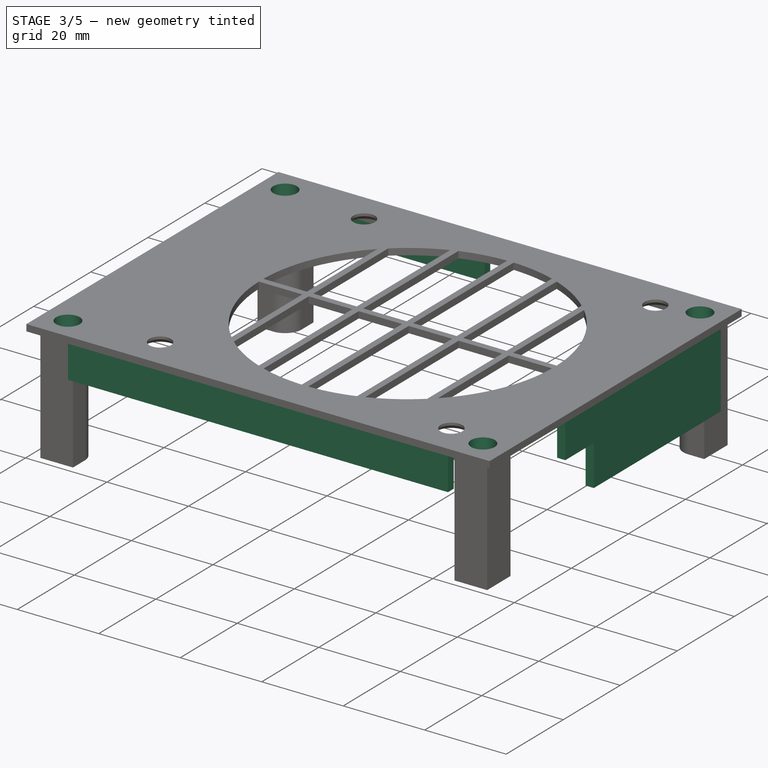
[diagram: stage 3 of 5 — iso view after this stage's code; geometry added in this stage tinted green]
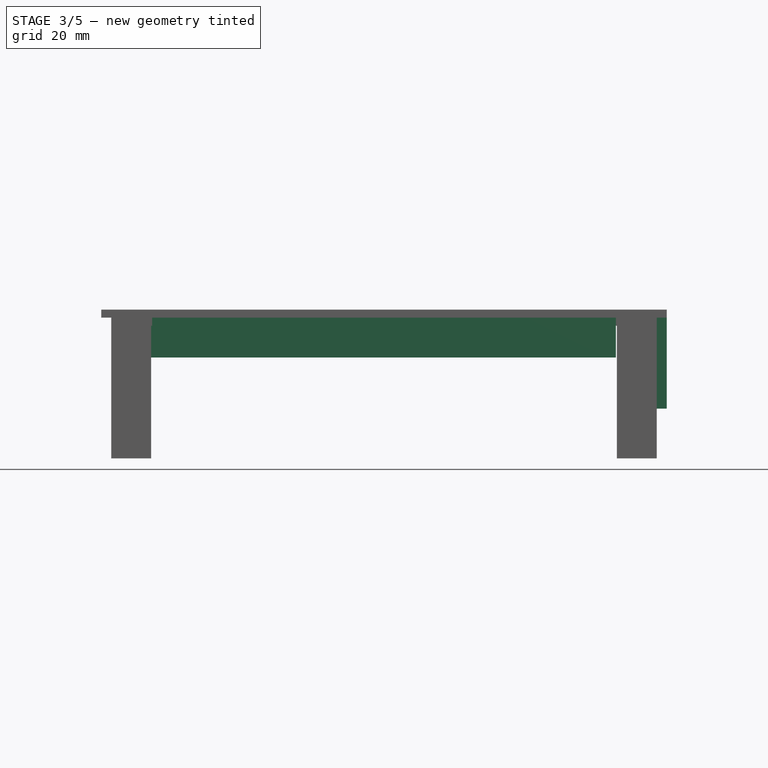
[diagram: stage 3 of 5 — front view after this stage's code; geometry added in this stage tinted green]
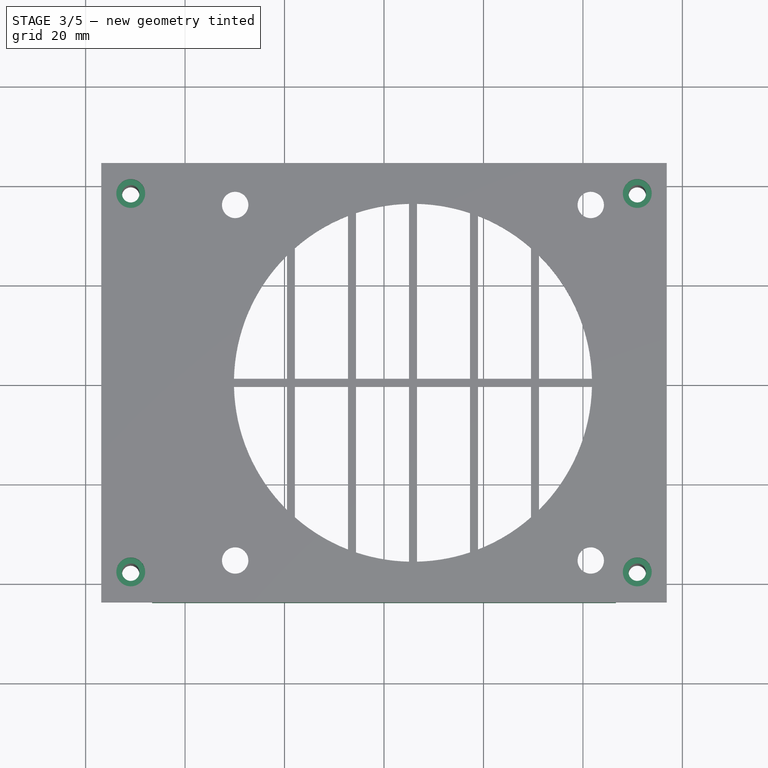
[diagram: stage 3 of 5 — top view after this stage's code; geometry added in this stage tinted green]
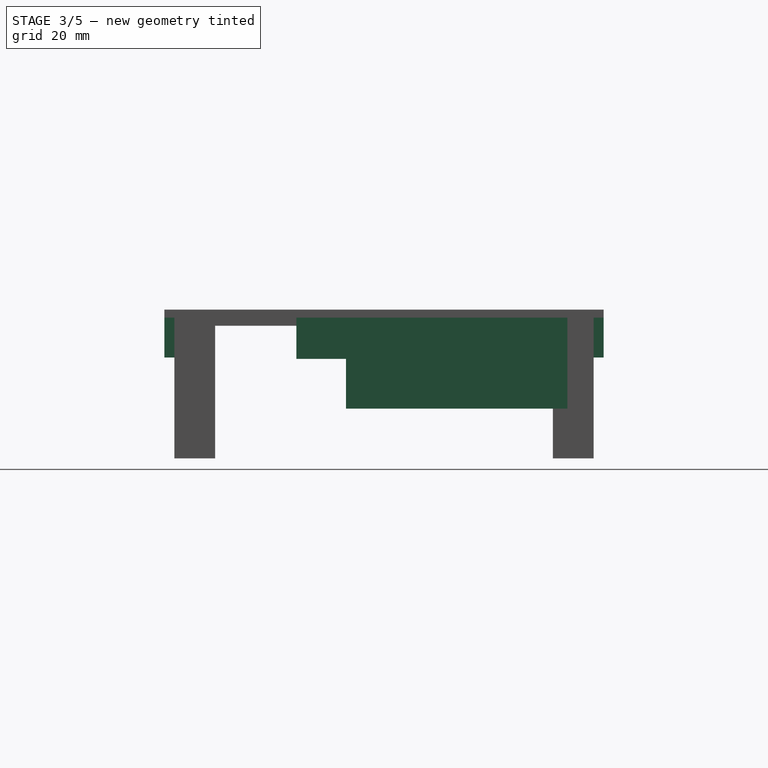
[diagram: stage 3 of 5 — right view after this stage's code; geometry added in this stage tinted green]
FEATURE [PartDesign::ShapeBinder] ShapeBinder001  label="T_B_UsbCut"
  Placement = pos=(0,0,0) rot=(0,0.707107,0.707107;3.14159rad)
  Support = -> [Sketch008]
  TraceSupport = false
FEATURE [Sketcher::SketchObject] Sketch016  label="T_UsbCut"
  AttachmentOffset = pos=(0,0,44.17) rot=(0,0,1;0rad)
  ExternalGeometry = -> [ShapeBinder001]
  MapMode = 5
  Placement = pos=(0,44.17,9.8e-15) rot=(0,0.707107,0.707107;3.14159rad)
  Support = -> [XZ_Plane002]
  expr: AttachmentOffset.Base.z = B_Template_XY.Constraints.Length / 2
  sketch-geometry (6):
    g0: LineSegment StartX=47.025 StartY=36.02 StartZ=0 EndX=4.835 EndY=36.02 EndZ=0
    g1: LineSegment StartX=4.835 StartY=36.02 StartZ=0 EndX=4.835 EndY=28.02 EndZ=0
    g2: LineSegment StartX=4.835 StartY=28.02 StartZ=0 EndX=47.025 EndY=28.02 EndZ=0
    g3: LineSegment StartX=47.025 StartY=28.02 StartZ=0 EndX=47.025 EndY=36.02 EndZ=0
    g4: LineSegment [constr] StartX=46.825 StartY=36.02 StartZ=0 EndX=47.025 EndY=36.02 EndZ=0
    g5: LineSegment [constr] StartX=4.835 StartY=36.02 StartZ=0 EndX=4.635 EndY=36.02 EndZ=0
  constraints (16):
    c: Coincident(g0,g1)
    c: Coincident(g1,g2)
    c: Coincident(g2,g3)
    c: Coincident(g3,g0)
    c: Horizontal(g0)
    c: Horizontal(g2)
    c: Vertical(g1)
    c: Vertical(g3)
    c: PointOnObject(g0,g-3)
    c: Coincident(g4,g-3)
    c: Coincident(g4,g0)
    c: Coincident(g5,g0)
    c: Coincident(g5,g-3)
    c: Equal(g4,g5)
    c: DistanceY(g2,g4) = 8
    c: DistanceX(g4,g4) = 0.2  'Tolerance'
FEATURE [PartDesign::ShapeBinder] ShapeBinder002  label="T_B_PowerCut"
  Placement = pos=(0,0,0) rot=(0.57735,0.57735,0.57735;2.0944rad)
  Support = -> [Sketch006]
  TraceSupport = false
FEATURE [Sketcher::SketchObject] Sketch017  label="T_PowerCut"
  AttachmentOffset = pos=(0,0,56.855) rot=(0,0,1;0rad)
  ExternalGeometry = -> [ShapeBinder002]
  MapMode = 5
  Placement = pos=(56.855,-1.26e-14,1.26e-14) rot=(0.57735,0.57735,0.57735;2.0944rad)
  Support = -> [YZ_Plane002]
  expr: Constraints[8] = T_UsbCut.Constraints.Tolerance
  expr: AttachmentOffset.Base.z = B_Template_XY.Constraints.Width / 2
  sketch-geometry (9):
    g0: LineSegment [constr] StartX=-17.63 StartY=36.02 StartZ=0 EndX=-17.63 EndY=7.72 EndZ=0
    g1: LineSegment [constr] StartX=-17.83 StartY=36.02 StartZ=0 EndX=-17.63 EndY=36.02 EndZ=0
    g2: LineSegment [constr] StartX=36.87 StartY=36.02 StartZ=0 EndX=36.67 EndY=36.02 EndZ=0
    g3: LineSegment StartX=-17.63 StartY=36.02 StartZ=0 EndX=-17.63 EndY=27.72 EndZ=0
    g4: LineSegment StartX=-17.63 StartY=36.02 StartZ=0 EndX=36.87 EndY=36.02 EndZ=0
    g5: LineSegment StartX=-17.63 StartY=27.72 StartZ=0 EndX=-7.63 EndY=27.72 EndZ=0
    g6: LineSegment StartX=-7.63 StartY=27.72 StartZ=0 EndX=-7.63 EndY=17.72 EndZ=0
    g7: LineSegment StartX=-7.63 StartY=17.72 StartZ=0 EndX=36.87 EndY=17.72 EndZ=0
    g8: LineSegment StartX=36.87 StartY=36.02 StartZ=0 EndX=36.87 EndY=17.72 EndZ=0
  constraints (25):
    c: PointOnObject(g0,g-3)
    c: PointOnObject(g0,g-4)
    c: Vertical(g0)
    c: Coincident(g1,g-3)
    c: Coincident(g1,g0)
    c: Coincident(g2,g-3)
    c: Horizontal(g2)
    c: Equal(g2,g1)
    c: DistanceX(g1,g1) = 0.2
    c: Coincident(g3,g0)
    c: Vertical(g3)
    c: Coincident(g4,g3)
    c: DistanceY(g-4,g3) = 20
    c: Coincident(g5,g3)
    c: Horizontal(g5)
    c: DistanceX(g5,g5) = 10
    c: Coincident(g6,g5)
    c: Vertical(g6)
    c: DistanceY(g-4,g6) = 10
    c: Coincident(g7,g6)
    c: Horizontal(g7)
    c: Coincident(g8,g4)
    c: Coincident(g8,g7)
    c: Vertical(g8)
    c: Coincident(g2,g4)
FEATURE [PartDesign::ShapeBinder] ShapeBinder003  label="T_B_StepperCut"
  Placement = pos=(0,0,0) rot=(1,0,0;1.5708rad)
  Support = -> [Sketch007]
  TraceSupport = false
FEATURE [Sketcher::SketchObject] Sketch018  label="T_StepperCut"
  AttachmentOffset = pos=(0,0,44.17) rot=(0,0,1;0rad)
  ExternalGeometry = -> [ShapeBinder003]
  MapMode = 5
  Placement = pos=(0,-44.17,-9.8e-15) rot=(1,0,0;1.5708rad)
  Support = -> [XZ_Plane002]
  expr: Constraints[5] = T_UsbCut.Constraints.Tolerance
  expr: AttachmentOffset.Base.z = B_Template_XY.Constraints.Length / 2
  sketch-geometry (6):
    g0: LineSegment [constr] StartX=-46.825 StartY=36.02 StartZ=0 EndX=-46.625 EndY=36.02 EndZ=0
    g1: LineSegment [constr] StartX=46.625 StartY=36.02 StartZ=0 EndX=46.825 EndY=36.02 EndZ=0
    g2: LineSegment StartX=-46.625 StartY=36.02 StartZ=0 EndX=46.625 EndY=36.02 EndZ=0
    g3: LineSegment StartX=46.625 StartY=36.02 StartZ=0 EndX=46.625 EndY=28.02 EndZ=0
    g4: LineSegment StartX=46.625 StartY=28.02 StartZ=0 EndX=-46.625 EndY=28.02 EndZ=0
    g5: LineSegment StartX=-46.625 StartY=28.02 StartZ=0 EndX=-46.625 EndY=36.02 EndZ=0
  constraints (16):
    c: Coincident(g0,g-3)
    c: Coincident(g1,g-3)
    c: Horizontal(g0)
    c: Horizontal(g1)
    c: Equal(g0,g1)
    c: DistanceX(g0,g0) = 0.2
    c: Coincident(g2,g3)
    c: Coincident(g3,g4)
    c: Coincident(g4,g5)
    c: Coincident(g5,g2)
    c: Horizontal(g4)
    c: Vertical(g3)
    c: Vertical(g5)
    c: Coincident(g2,g0)
    c: Coincident(g2,g1)
    c: DistanceY(g5,g5) = 8
FEATURE [PartDesign::ShapeBinder] ShapeBinder004  label="T_B_DisplayCut"
  Placement = pos=(0,0,0) rot=(-0.57735,0.57735,0.57735;4.18879rad)
  Support = -> [Sketch009]
  TraceSupport = false
FEATURE [Sketcher::SketchObject] Sketch019  label="T_DisplayCut"
  AttachmentOffset = pos=(0,0,56.855) rot=(0,0,1;0rad)
  ExternalGeometry = -> [ShapeBinder004]
  MapMode = 5
  Placement = pos=(-56.855,1.26e-14,-1.26e-14) rot=(-0.57735,0.57735,0.57735;4.18879rad)
  Support = -> [YZ_Plane002]
  expr: Constraints[5] = T_UsbCut.Constraints.Tolerance
  expr: AttachmentOffset.Base.z = B_Template_XY.Constraints.Width / 2
  sketch-geometry (6):
    g0: LineSegment [constr] StartX=-23.85 StartY=36.02 StartZ=0 EndX=-23.65 EndY=36.02 EndZ=0
    g1: LineSegment [constr] StartX=20.15 StartY=36.02 StartZ=0 EndX=19.95 EndY=36.02 EndZ=0
    g2: LineSegment StartX=-23.65 StartY=36.02 StartZ=0 EndX=19.95 EndY=36.02 EndZ=0
    g3: LineSegment StartX=19.95 StartY=36.02 StartZ=0 EndX=19.95 EndY=28.02 EndZ=0
    g4: LineSegment StartX=19.95 StartY=28.02 StartZ=0 EndX=-23.65 EndY=28.02 EndZ=0
    g5: LineSegment StartX=-23.65 StartY=28.02 StartZ=0 EndX=-23.65 EndY=36.02 EndZ=0
  constraints (16):
    c: Coincident(g0,g-3)
    c: Horizontal(g0)
    c: Coincident(g1,g-3)
    c: Horizontal(g1)
    c: Equal(g0,g1)
    c: DistanceX(g0,g0) = 0.2
    c: Coincident(g2,g3)
    c: Coincident(g3,g4)
    c: Coincident(g4,g5)
    c: Coincident(g5,g2)
    c: Horizontal(g4)
    c: Vertical(g3)
    c: Vertical(g5)
    c: Coincident(g2,g0)
    c: Coincident(g2,g1)
    c: DistanceY(g5,g5) = 8
FEATURE [Sketcher::SketchObject] Sketch020  label="T_ScrewHeads"
  AttachmentOffset = pos=(0,0,37.64) rot=(0,0,1;0rad)
  ExternalGeometry = -> [ShapeBinder]
  MapMode = 5
  Placement = pos=(0,0,37.64) rot=(0,0,1;0rad)
  Support = -> [XY_Plane002]
  expr: AttachmentOffset.Base.z = T_Base.Placement.Base.z + T_Base_.Length
  expr: Constraints[7] = Screws.M3HeadRadius
  sketch-geometry (4):
    g0: Circle CenterX=-50.925 CenterY=38.05 CenterZ=0 NormalX=0 NormalY=0 NormalZ=1 AngleXU=0 Radius=2.9
    g1: Circle CenterX=50.925 CenterY=38.05 CenterZ=0 NormalX=0 NormalY=0 NormalZ=1 AngleXU=0 Radius=2.9
    g2: Circle CenterX=50.925 CenterY=-38.05 CenterZ=0 NormalX=0 NormalY=0 NormalZ=1 AngleXU=0 Radius=2.9
    g3: Circle CenterX=-50.925 CenterY=-38.05 CenterZ=0 NormalX=0 NormalY=0 NormalZ=1 AngleXU=0 Radius=2.9
  constraints (8):
    c: Coincident(g0,g-3)
    c: Coincident(g1,g-4)
    c: Coincident(g2,g-5)
    c: Coincident(g3,g-6)
    c: Equal(g0,g1)
    c: Equal(g1,g2)
    c: Equal(g2,g3)
    c: Radius(g0) = 2.9
FEATURE [PartDesign::Pocket] Pocket006  label="T_ScrewHeads_"
  BaseFeature = -> Pad008
  Length = 3
  Length2 = 100
  Profile = -> Sketch020
  Type = 0
  expr: Length = Screws.M3HeadHeight
FEATURE [PartDesign::Pad] Pad009  label="T_UsbCut_"
  BaseFeature = -> Pocket006
  Length = 2.02
  Length2 = 100
  Profile = -> Sketch016
  Reversed = true
  Type = 0
  expr: Length = B_Template_XY.Constraints.WallThickness + B_Template_XY.Constraints.PcbTolerance
FEATURE [PartDesign::Pad] Pad010  label="T_PowerCut_"
  BaseFeature = -> Pad009
  Length = 2.02
  Length2 = 100
  Profile = -> Sketch017
  Reversed = true
  Type = 0
  expr: Length = T_UsbCut_.Length
FEATURE [PartDesign::Pad] Pad011  label="T_StepperCut_"
  BaseFeature = -> Pad010
  Length = 2.02
  Length2 = 100
  Profile = -> Sketch018
  Reversed = true
  Type = 0
  expr: Length = T_UsbCut_.Length
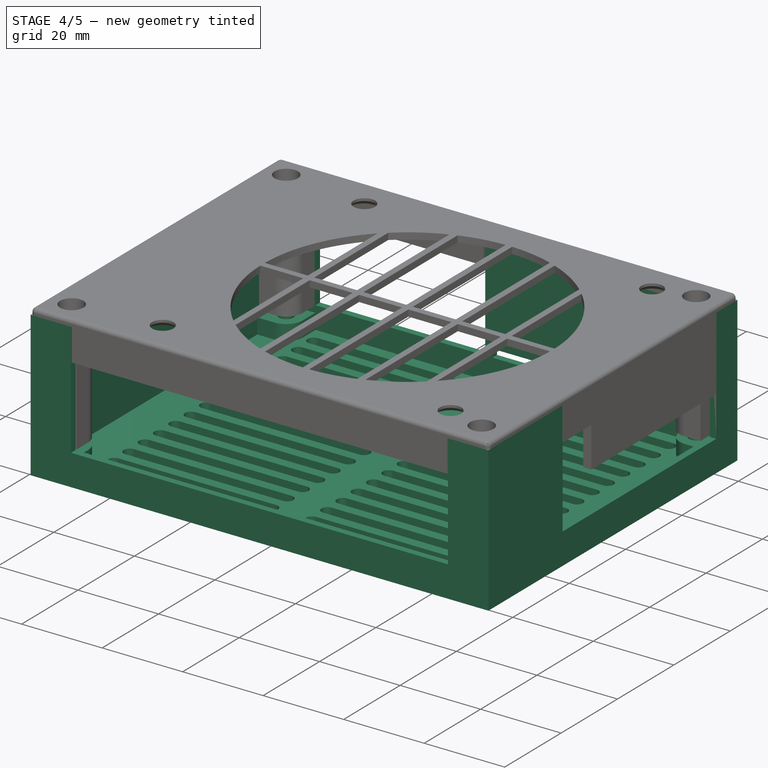
[diagram: stage 4 of 5 — iso view after this stage's code; geometry added in this stage tinted green]
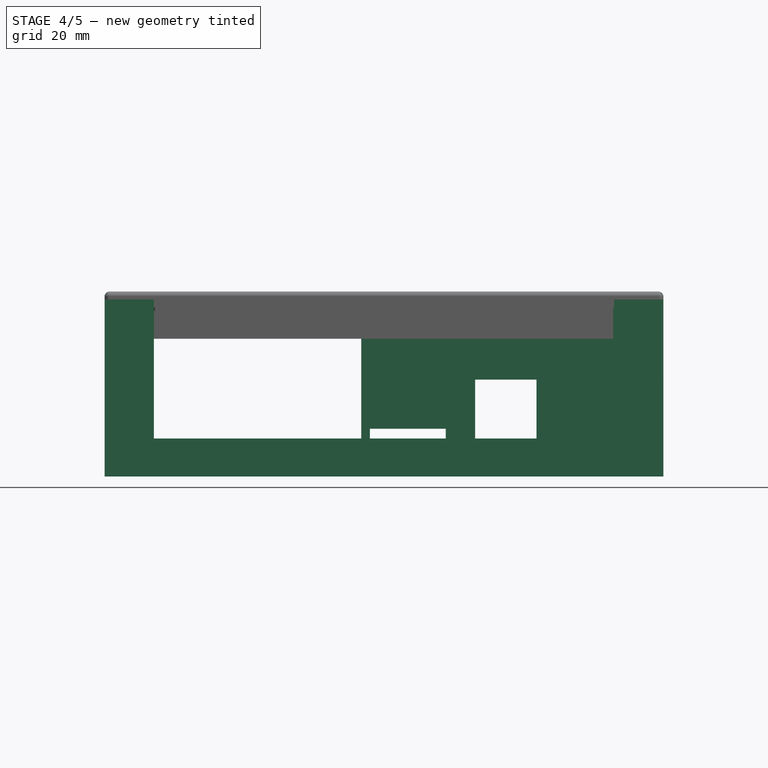
[diagram: stage 4 of 5 — front view after this stage's code; geometry added in this stage tinted green]
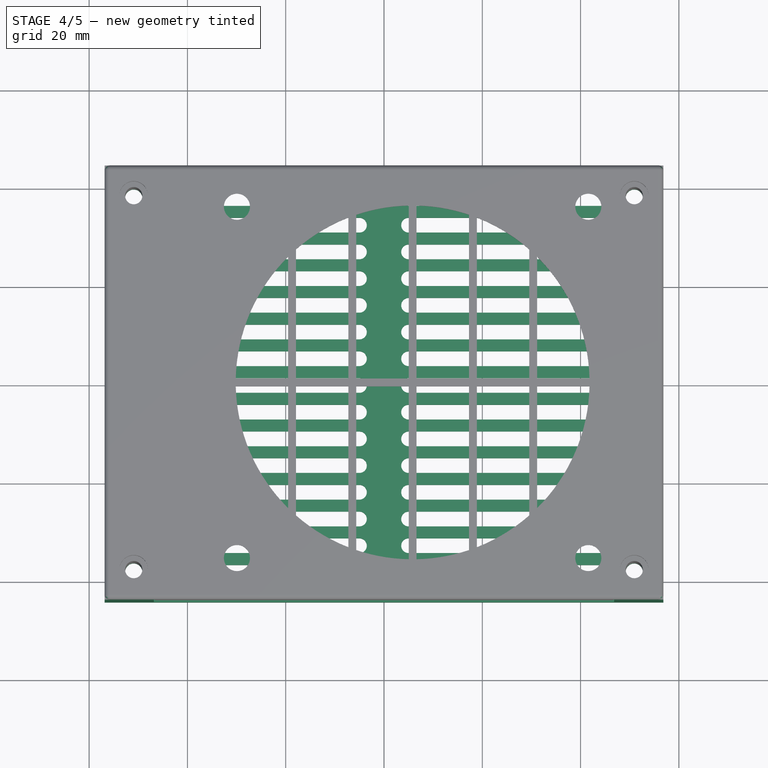
[diagram: stage 4 of 5 — top view after this stage's code; geometry added in this stage tinted green]
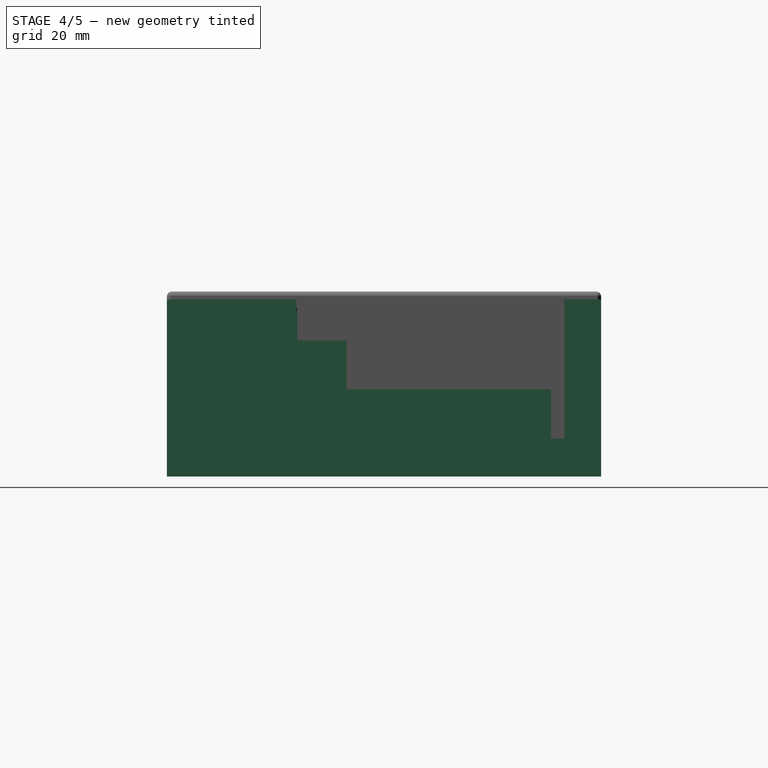
[diagram: stage 4 of 5 — right view after this stage's code; geometry added in this stage tinted green]
FEATURE [Sketcher::SketchObject] Sketch006  label="B_PowerCut"
  ExternalGeometry = -> [Sketch]
  MapMode = 5
  Placement = pos=(0,0,0) rot=(0.57735,0.57735,0.57735;2.0944rad)
  Support = -> [YZ_Plane001]
  expr: Constraints[25] = B_Walls_.Length
  expr: Constraints[21] = B_Walls.Placement.Base.z
  expr: Constraints.Baseline = B_Walls.Placement.Base.z + 1.7mm
  sketch-geometry (12):
    g0: LineSegment [constr] StartX=-9.83 StartY=25.72 StartZ=0 EndX=-17.83 EndY=25.72 EndZ=0
    g1: LineSegment StartX=-17.83 StartY=36.02 StartZ=0 EndX=-17.83 EndY=7.72 EndZ=0
    g2: LineSegment StartX=-17.83 StartY=7.72 StartZ=0 EndX=36.67 EndY=7.72 EndZ=0
    g3: LineSegment StartX=36.67 StartY=7.72 StartZ=0 EndX=36.67 EndY=36.02 EndZ=0
    g4: LineSegment [constr] StartX=36.67 StartY=17.72 StartZ=0 EndX=-9.83 EndY=17.72 EndZ=0
    g5: LineSegment [constr] StartX=-9.83 StartY=17.72 StartZ=0 EndX=-9.83 EndY=25.72 EndZ=0
    g6: LineSegment [constr] StartX=-44.17 StartY=-1.23e-14 StartZ=0 EndX=-44.17 EndY=36.02 EndZ=0
    g7: LineSegment [constr] StartX=-44.17 StartY=7.72 StartZ=0 EndX=44.17 EndY=7.72 EndZ=0
    g8: LineSegment [constr] StartX=44.17 StartY=7.72 StartZ=0 EndX=44.17 EndY=1.24e-14 EndZ=0
    g9: LineSegment [constr] StartX=-44.17 StartY=6.02 StartZ=0 EndX=44.17 EndY=6.02 EndZ=0
    g10: LineSegment [constr] StartX=-44.17 StartY=36.02 StartZ=0 EndX=36.67 EndY=36.02 EndZ=0
    g11: LineSegment StartX=-17.83 StartY=36.02 StartZ=0 EndX=36.67 EndY=36.02 EndZ=0
  constraints (37):
    c: Horizontal(g0)
    c: Vertical(g1)
    c: Coincident(g1,g2)
    c: Horizontal(g2)
    c: Coincident(g2,g3)
    c: Vertical(g3)
    c: Horizontal(g4)
    c: Coincident(g4,g5)
    c: Vertical(g5)
    c: Coincident(g0,g5)
    c: DistanceX(g3,g-4) = 7.5
    c: DistanceX(g0,g3) = 54.5
    c: Coincident(g6,g-3)
    c: Vertical(g6)
    c: Horizontal(g7)
    c: Coincident(g7,g8)
    c: Coincident(g8,g-4)
    c: Vertical(g8)
    c: PointOnObject(g9,g6)
    c: PointOnObject(g9,g8)
    c: Horizontal(g9)
    c: DistanceY(g6,g9) = 6.02
    c: PointOnObject(g1,g7)
    c: PointOnObject(g7,g6)
    c: DistanceY(g6,g7) = 7.72  'Baseline'
    c: DistanceY(g9,g6) = 30
    c: DistanceY(g7,g4) = 10
    c: PointOnObject(g4,g3)
    c: DistanceY(g1,g0) = 18
    c: DistanceX(g0,g0) = 8
    c: Coincident(g10,g6)
    c: Coincident(g10,g3)
    c: Horizontal(g10)
    c: PointOnObject(g1,g10)
    c: PointOnObject(g0,g1)
    c: Coincident(g11,g1)
    c: Coincident(g11,g3)
FEATURE [PartDesign::Pocket] Pocket002  label="B_PowerCut_"
  BaseFeature = -> Pad002
  Length = 5
  Length2 = 100
  Profile = -> Sketch006
  Refine = true
  Reversed = true
  Type = 1
FEATURE [Sketcher::SketchObject] Sketch007  label="B_StepperCut"
  ExternalGeometry = -> [Sketch]
  MapMode = 5
  Placement = pos=(0,0,0) rot=(1,0,0;1.5708rad)
  Support = -> [XZ_Plane001]
  expr: Constraints[6] = B_PowerCut.Constraints.Baseline
  expr: Constraints[5] = B_Walls.Placement.Base.z + B_Walls_.Length
  sketch-geometry (4):
    g0: LineSegment StartX=-46.825 StartY=7.72 StartZ=0 EndX=46.825 EndY=7.72 EndZ=0
    g1: LineSegment StartX=46.825 StartY=7.72 StartZ=0 EndX=46.825 EndY=36.02 EndZ=0
    g2: LineSegment StartX=46.825 StartY=36.02 StartZ=0 EndX=-46.825 EndY=36.02 EndZ=0
    g3: LineSegment StartX=-46.825 StartY=36.02 StartZ=0 EndX=-46.825 EndY=7.72 EndZ=0
  constraints (12):
    c: Coincident(g1,g2)
    c: Coincident(g2,g3)
    c: Horizontal(g2)
    c: Vertical(g1)
    c: Vertical(g3)
    c: DistanceY(g-3,g2) = 36.02
    c: DistanceY(g-3,g3) = 7.72
    c: Coincident(g0,g3)
    c: Horizontal(g0)
    c: Coincident(g0,g1)
    c: PointOnObject(g-4,g1)
    c: PointOnObject(g-3,g3)
FEATURE [PartDesign::Pocket] Pocket003  label="B_StepperCut_"
  BaseFeature = -> Pocket002
  Length = 5
  Length2 = 100
  Profile = -> Sketch007
  Reversed = true
  Type = 1
FEATURE [Sketcher::SketchObject] Sketch008  label="B_UsbCut"
  ExternalGeometry = -> [Sketch]
  MapMode = 5
  Placement = pos=(0,0,0) rot=(0,0.707107,0.707107;3.14159rad)
  Support = -> [XZ_Plane001]
  expr: Constraints[22] = B_Walls_.Length
  expr: Constraints[21] = B_Walls.Placement.Base.z
  expr: Constraints[7] = B_PowerCut.Constraints.Baseline
  sketch-geometry (16):
    g0: LineSegment [constr] StartX=-56.855 StartY=0 StartZ=0 EndX=-56.855 EndY=7.72 EndZ=0
    g1: LineSegment [constr] StartX=-56.855 StartY=7.72 StartZ=0 EndX=56.855 EndY=7.72 EndZ=0
    g2: LineSegment [constr] StartX=56.855 StartY=7.72 StartZ=0 EndX=56.855 EndY=0 EndZ=0
    g3: LineSegment StartX=46.825 StartY=7.72 StartZ=0 EndX=4.635 EndY=7.72 EndZ=0
    g4: LineSegment StartX=4.635 StartY=7.72 StartZ=0 EndX=4.635 EndY=36.02 EndZ=0
    g5: LineSegment StartX=4.635 StartY=36.02 StartZ=0 EndX=46.825 EndY=36.02 EndZ=0
    g6: LineSegment StartX=46.825 StartY=36.02 StartZ=0 EndX=46.825 EndY=7.72 EndZ=0
    g7: LineSegment [constr] StartX=-56.855 StartY=6.02 StartZ=0 EndX=56.855 EndY=6.02 EndZ=0
    g8: LineSegment StartX=2.865 StartY=7.72 StartZ=0 EndX=-12.575 EndY=7.72 EndZ=0
    g9: LineSegment StartX=-12.575 StartY=7.72 StartZ=0 EndX=-12.575 EndY=9.72 EndZ=0
    g10: LineSegment StartX=-12.575 StartY=9.72 StartZ=0 EndX=2.865 EndY=9.72 EndZ=0
    g11: LineSegment StartX=2.865 StartY=9.72 StartZ=0 EndX=2.865 EndY=7.72 EndZ=0
    g12: LineSegment StartX=-18.535 StartY=7.72 StartZ=0 EndX=-31.035 EndY=7.72 EndZ=0
    g13: LineSegment StartX=-31.035 StartY=7.72 StartZ=0 EndX=-31.035 EndY=19.72 EndZ=0
    g14: LineSegment StartX=-31.035 StartY=19.72 StartZ=0 EndX=-18.535 EndY=19.72 EndZ=0
    g15: LineSegment StartX=-18.535 StartY=19.72 StartZ=0 EndX=-18.535 EndY=7.72 EndZ=0
  constraints (48):
    c: Coincident(g0,g-4)
    c: Vertical(g0)
    c: Coincident(g0,g1)
    c: Horizontal(g1)
    c: Coincident(g1,g2)
    c: Coincident(g2,g-5)
    c: Vertical(g2)
    c: DistanceY(g0,g0) = 7.72
    c: Coincident(g3,g4)
    c: Coincident(g4,g5)
    c: Coincident(g5,g6)
    c: Coincident(g6,g3)
    c: Horizontal(g3)
    c: Horizontal(g5)
    c: Vertical(g4)
    c: Vertical(g6)
    c: PointOnObject(g3,g1)
    c: PointOnObject(g-8,g6)
    c: PointOnObject(g7,g0)
    c: PointOnObject(g7,g2)
    c: Horizontal(g7)
    c: DistanceY(g0,g7) = 6.02
    c: DistanceY(g7,g5) = 30
    c: DistanceX(g4,g-6) = 50.2
    c: Coincident(g8,g9)
    c: Coincident(g9,g10)
    c: Coincident(g10,g11)
    c: Coincident(g11,g8)
    c: Horizontal(g8)
    c: Horizontal(g10)
    c: Vertical(g9)
    c: Vertical(g11)
    c: PointOnObject(g8,g1)
    c: DistanceX(g-7,g10) = 57.7
    c: DistanceY(g11,g11) = 2
    c: DistanceX(g-7,g9) = 42.26
    c: Coincident(g12,g13)
    c: Coincident(g13,g14)
    c: Coincident(g14,g15)
    c: Coincident(g15,g12)
    c: Horizontal(g12)
    c: Horizontal(g14)
    c: Vertical(g13)
    c: Vertical(g15)
    c: PointOnObject(g12,g1)
    c: DistanceX(g-7,g14) = 36.3
    c: DistanceY(g15,g15) = 12
    c: DistanceX(g-7,g13) = 23.8
FEATURE [PartDesign::Pocket] Pocket004  label="B_UsbCut_"
  BaseFeature = -> Pocket003
  Length = 5
  Length2 = 100
  Profile = -> Sketch008
  Reversed = true
  Type = 1
FEATURE [PartDesign::Pad] Pad012  label="T_DisplayCut_"
  BaseFeature = -> Pad011
  Length = 2.02
  Length2 = 100
  Profile = -> Sketch019
  Refine = true
  Reversed = true
  Type = 0
  expr: Length = T_UsbCut_.Length
FEATURE [PartDesign::Fillet] Fillet001
  Base = -> Pad012 [Edge42,Edge41,Edge39,Edge40,Edge341,Edge342,Edge340,Edge339,Edge292,Edge101,Edge105,Edge270,Edge109,Edge284,Edge97,Edge299]
  BaseFeature = -> Pad012
  Radius = 1
FEATURE [PartDesign::Body] Body001  label="Top"
  Group = -> [ShapeBinder,Sketch013,Pad006,Chamfer,Sketch014,Pad007,Sketch015,Pad008,Sketch020,Pocket006,ShapeBinder001,Sketch016,Pad009,ShapeBinder002,Sketch017,Pad010,ShapeBinder003,Sketch018,Pad011,ShapeBinder004,Sketch019,Pad012,Fillet001]
  Origin = -> Origin002
  Tip = -> Fillet001
FEATURE [App::Part] Part
  Group = -> [Body,Body001]
  Origin = -> Origin
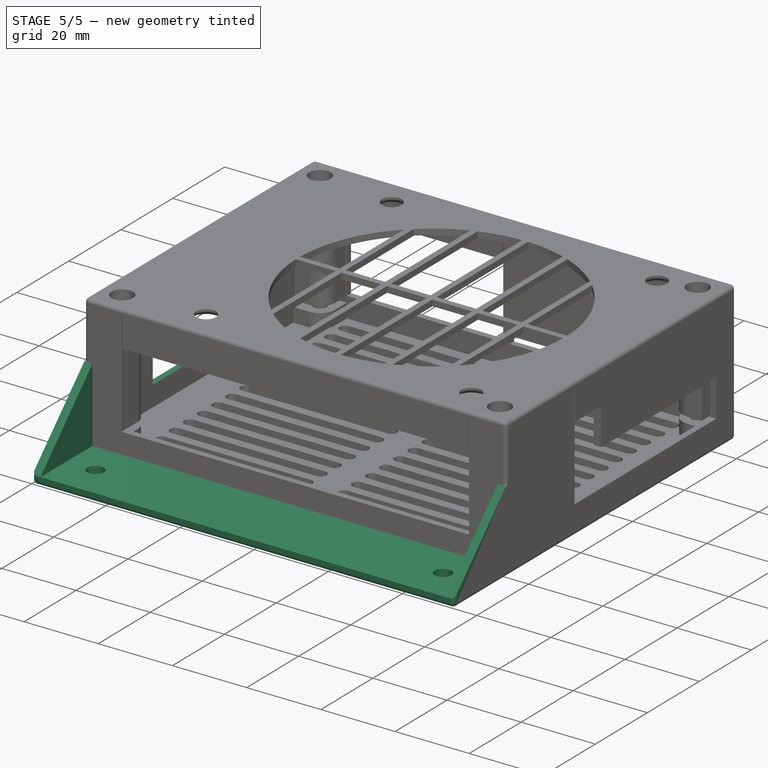
[diagram: stage 5 of 5 — iso view after this stage's code; geometry added in this stage tinted green]
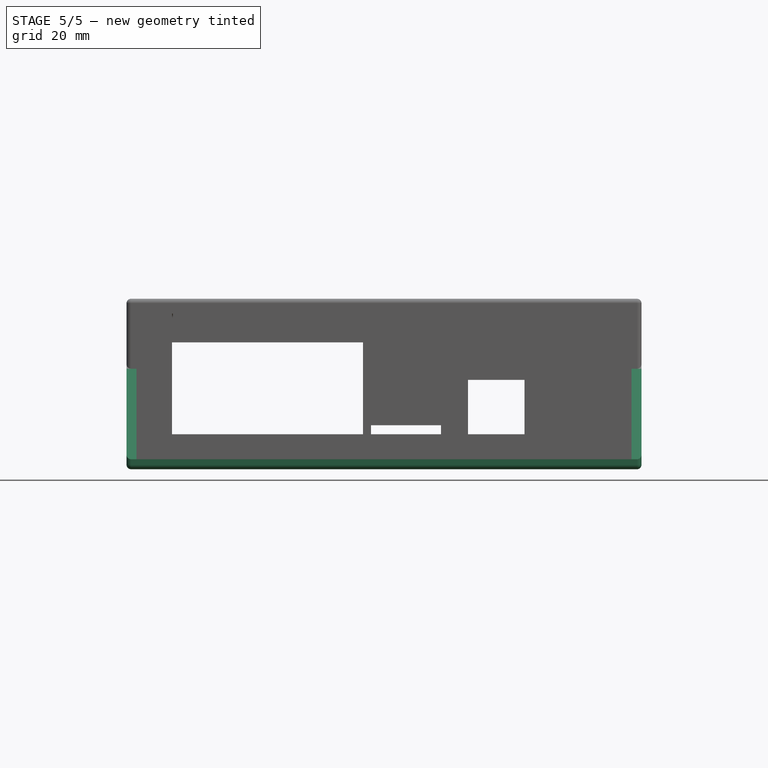
[diagram: stage 5 of 5 — front view after this stage's code; geometry added in this stage tinted green]
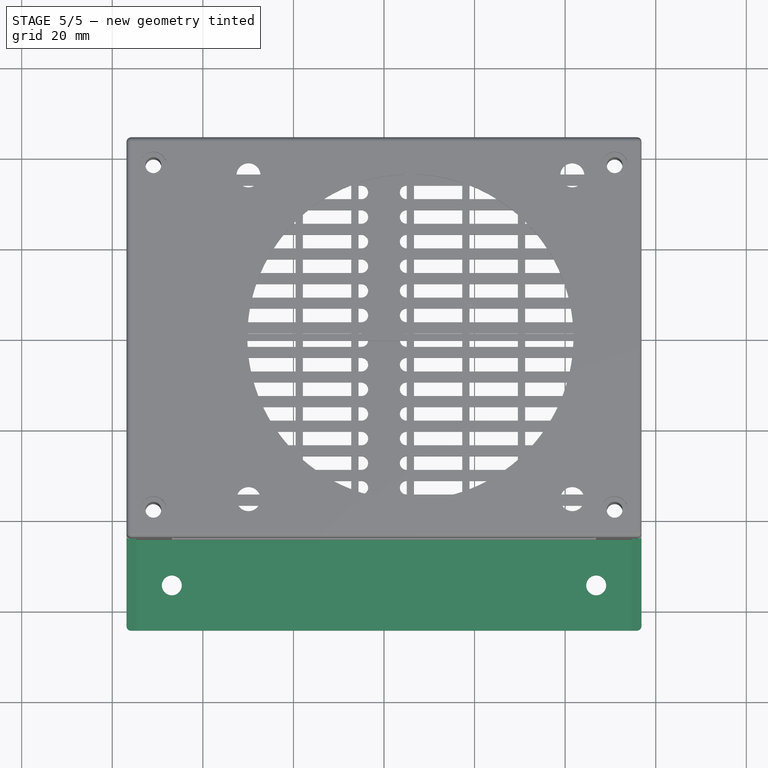
[diagram: stage 5 of 5 — top view after this stage's code; geometry added in this stage tinted green]
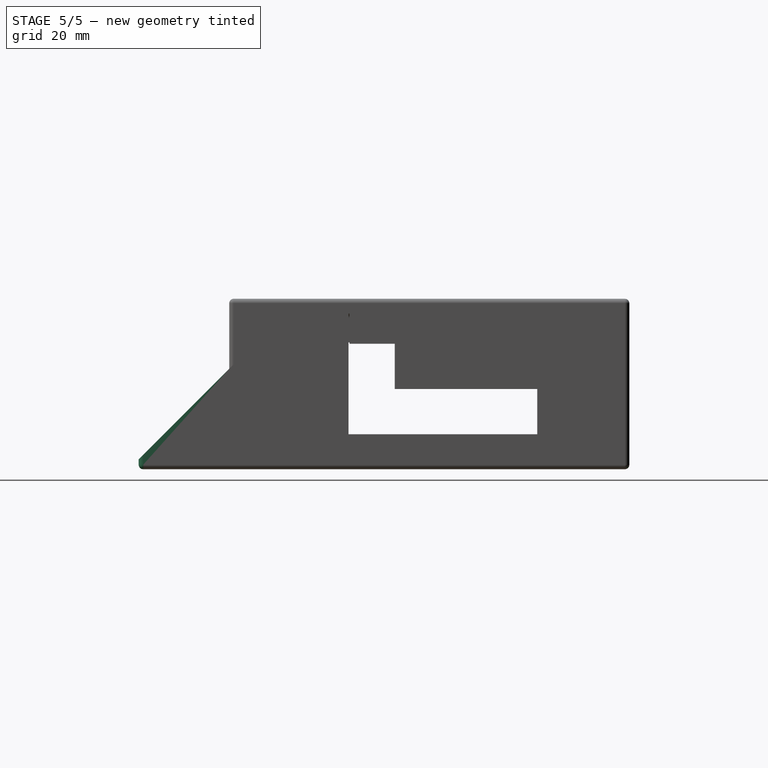
[diagram: stage 5 of 5 — right view after this stage's code; geometry added in this stage tinted green]
FEATURE [Sketcher::SketchObject] Sketch009  label="B_DisplayCut"
  ExternalGeometry = -> [Sketch]
  MapMode = 5
  Placement = pos=(0,0,0) rot=(-0.57735,0.57735,0.57735;4.18879rad)
  Support = -> [YZ_Plane001]
  expr: Constraints[21] = B_Walls_.Length
  expr: Constraints[11] = B_Walls.Placement.Base.z
  expr: Constraints[7] = B_PowerCut.Constraints.Baseline
  sketch-geometry (8):
    g0: LineSegment [constr] StartX=-44.17 StartY=1.23e-14 StartZ=0 EndX=-44.17 EndY=7.72 EndZ=0
    g1: LineSegment [constr] StartX=-44.17 StartY=7.72 StartZ=0 EndX=44.17 EndY=7.72 EndZ=0
    g2: LineSegment [constr] StartX=44.17 StartY=7.72 StartZ=0 EndX=44.17 EndY=-1.24e-14 EndZ=0
    g3: LineSegment [constr] StartX=-44.17 StartY=6.02 StartZ=0 EndX=44.17 EndY=6.02 EndZ=0
    g4: LineSegment StartX=20.15 StartY=7.72 StartZ=0 EndX=-23.85 EndY=7.72 EndZ=0
    g5: LineSegment StartX=-23.85 StartY=7.72 StartZ=0 EndX=-23.85 EndY=36.02 EndZ=0
    g6: LineSegment StartX=-23.85 StartY=36.02 StartZ=0 EndX=20.15 EndY=36.02 EndZ=0
    g7: LineSegment StartX=20.15 StartY=36.02 StartZ=0 EndX=20.15 EndY=7.72 EndZ=0
  constraints (24):
    c: Coincident(g0,g-5)
    c: Vertical(g0)
    c: Coincident(g0,g1)
    c: Horizontal(g1)
    c: Coincident(g1,g2)
    c: Coincident(g2,g-6)
    c: Vertical(g2)
    c: DistanceY(g0,g0) = 7.72
    c: PointOnObject(g3,g0)
    c: PointOnObject(g3,g2)
    c: Horizontal(g3)
    c: DistanceY(g0,g3) = 6.02
    c: Coincident(g4,g5)
    c: Coincident(g5,g6)
    c: Coincident(g6,g7)
    c: Coincident(g7,g4)
    c: Horizontal(g4)
    c: Horizontal(g6)
    c: Vertical(g5)
    c: Vertical(g7)
    c: PointOnObject(g4,g1)
    c: DistanceY(g3,g6) = 30
    c: DistanceX(g6,g-4) = 22
    c: DistanceX(g6,g6) = 44
FEATURE [PartDesign::Pocket] Pocket005  label="B_DisplayCut_"
  BaseFeature = -> Pocket004
  Length = 5
  Length2 = 100
  Profile = -> Sketch009
  Reversed = true
  Type = 1
FEATURE [Sketcher::SketchObject] Sketch010  label="B_Flap"
  ExternalGeometry = -> [Sketch]
  MapMode = 5
  Support = -> [XY_Plane001]
  expr: Constraints[20] = Screws.M4Radius
  sketch-geometry (8):
    g0: LineSegment StartX=-56.855 StartY=-44.17 StartZ=0 EndX=56.855 EndY=-44.17 EndZ=0
    g1: LineSegment StartX=56.855 StartY=-44.17 StartZ=0 EndX=56.855 EndY=-64.17 EndZ=0
    g2: LineSegment StartX=56.855 StartY=-64.17 StartZ=0 EndX=-56.855 EndY=-64.17 EndZ=0
    g3: LineSegment StartX=-56.855 StartY=-64.17 StartZ=0 EndX=-56.855 EndY=-44.17 EndZ=0
    g4: LineSegment [constr] StartX=-56.855 StartY=-54.17 StartZ=0 EndX=56.855 EndY=-54.17 EndZ=0
    g5: Circle CenterX=-46.855 CenterY=-54.17 CenterZ=0 NormalX=0 NormalY=0 NormalZ=1 AngleXU=0 Radius=2.2
    g6: Circle CenterX=46.855 CenterY=-54.17 CenterZ=0 NormalX=0 NormalY=0 NormalZ=1 AngleXU=0 Radius=2.2
    g7: LineSegment [constr] StartX=0 StartY=-44.17 StartZ=0 EndX=0 EndY=-64.17 EndZ=0
  constraints (21):
    c: Coincident(g0,g1)
    c: Coincident(g1,g2)
    c: Coincident(g2,g3)
    c: Coincident(g3,g0)
    c: Horizontal(g2)
    c: Vertical(g1)
    c: Vertical(g3)
    c: Coincident(g0,g-3)
    c: Coincident(g0,g-3)
    c: DistanceY(g3,g3) = 20
    c: PointOnObject(g4,g3)
    c: PointOnObject(g4,g1)
    c: Symmetric(g0,g2,g4)
    c: PointOnObject(g5,g4)
    c: DistanceX(g4,g5) = 10
    c: PointOnObject(g7,g0)
    c: PointOnObject(g7,g2)
    c: Symmetric(g0,g0,g7)
    c: Symmetric(g5,g6,g7)
    c: Equal(g5,g6)
    c: Radius(g5) = 2.2
FEATURE [PartDesign::Pad] Pad003  label="B_Flap_"
  BaseFeature = -> Pocket005
  Length = 2.2
  Length2 = 100
  Profile = -> Sketch010
  Refine = true
  Type = 0
  expr: Length = B_Base_.Length
FEATURE [Sketcher::SketchObject] Sketch011  label="B_FlapStab1"
  AttachmentOffset = pos=(0,0,56.855) rot=(0,0,1;0rad)
  ExternalGeometry = -> [Sketch010]
  MapMode = 5
  Placement = pos=(56.855,-1.26e-14,1.26e-14) rot=(0.57735,0.57735,0.57735;2.0944rad)
  Support = -> [YZ_Plane001]
  expr: AttachmentOffset.Base.z = B_Template_XY.Constraints.Width / 2
  expr: Constraints[7] = B_Flap_.Length
  sketch-geometry (5):
    g0: LineSegment [constr] StartX=-64.17 StartY=-3.36e-14 StartZ=0 EndX=-64.17 EndY=2.2 EndZ=0
    g1: LineSegment StartX=-64.17 StartY=2.2 StartZ=0 EndX=-44.17 EndY=2.2 EndZ=0
    g2: LineSegment [constr] StartX=-44.17 StartY=2.2 StartZ=0 EndX=-44.17 EndY=-2.8e-14 EndZ=0
    g3: LineSegment StartX=-44.17 StartY=2.2 StartZ=0 EndX=-44.17 EndY=22.2 EndZ=0
    g4: LineSegment StartX=-44.17 StartY=22.2 StartZ=0 EndX=-64.17 EndY=2.2 EndZ=0
  constraints (13):
    c: Coincident(g-3,g0)
    c: Vertical(g0)
    c: Coincident(g0,g1)
    c: Horizontal(g1)
    c: Coincident(g1,g2)
    c: Coincident(g2,g-3)
    c: Vertical(g2)
    c: DistanceY(g0,g0) = 2.2
    c: Coincident(g1,g3)
    c: Vertical(g3)
    c: Coincident(g3,g4)
    c: Coincident(g4,g1)
    c: Equal(g1,g3)
FEATURE [PartDesign::Pad] Pad004  label="B_FlapStab1_"
  BaseFeature = -> Pad003
  Length = 2.2
  Length2 = 100
  Profile = -> Sketch011
  Reversed = true
  Type = 0
  expr: Length = B_Flap_.Length
FEATURE [Sketcher::SketchObject] Sketch012  label="B_FlapStab2"
  AttachmentOffset = pos=(0,0,-56.855) rot=(0,0,1;0rad)
  ExternalGeometry = -> [Sketch010]
  MapMode = 5
  Placement = pos=(-56.855,1.26e-14,-1.26e-14) rot=(0.57735,0.57735,0.57735;2.0944rad)
  Support = -> [YZ_Plane001]
  expr: AttachmentOffset.Base.z = -B_Template_XY.Constraints.Width / 2
  expr: Constraints[7] = B_Flap_.Length
  sketch-geometry (5):
    g0: LineSegment [constr] StartX=-64.17 StartY=-3.36e-14 StartZ=0 EndX=-64.17 EndY=2.2 EndZ=0
    g1: LineSegment StartX=-64.17 StartY=2.2 StartZ=0 EndX=-44.17 EndY=2.2 EndZ=0
    g2: LineSegment [constr] StartX=-44.17 StartY=2.2 StartZ=0 EndX=-44.17 EndY=-2.8e-14 EndZ=0
    g3: LineSegment StartX=-44.17 StartY=2.2 StartZ=0 EndX=-44.17 EndY=22.2 EndZ=0
    g4: LineSegment StartX=-44.17 StartY=22.2 StartZ=0 EndX=-64.17 EndY=2.2 EndZ=0
  constraints (13):
    c: Coincident(g-3,g0)
    c: Vertical(g0)
    c: Coincident(g0,g1)
    c: Horizontal(g1)
    c: Coincident(g1,g2)
    c: Coincident(g2,g-3)
    c: Vertical(g2)
    c: DistanceY(g0,g0) = 2.2
    c: Coincident(g1,g3)
    c: Vertical(g3)
    c: Coincident(g3,g4)
    c: Coincident(g4,g1)
    c: Equal(g1,g3)
FEATURE [PartDesign::Pad] Pad005
  BaseFeature = -> Pad004
  Length = 2.2
  Length2 = 100
  Profile = -> Sketch012
  Refine = true
  Type = 0
  expr: Length = B_Flap_.Length
FEATURE [PartDesign::Fillet] Fillet
  Base = -> Pad005 [Edge14,Edge166,Edge172,Edge13,Edge16,Edge516,Edge521,Edge15,Edge181,Edge182]
  BaseFeature = -> Pad005
  Radius = 1
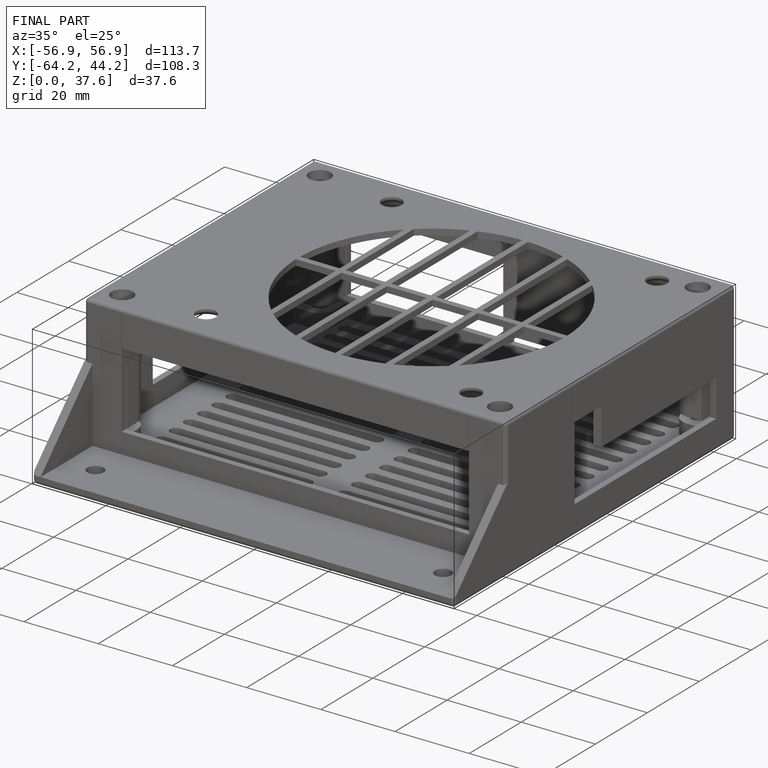
[diagram: finished part — iso view with bounding-box wireframe]
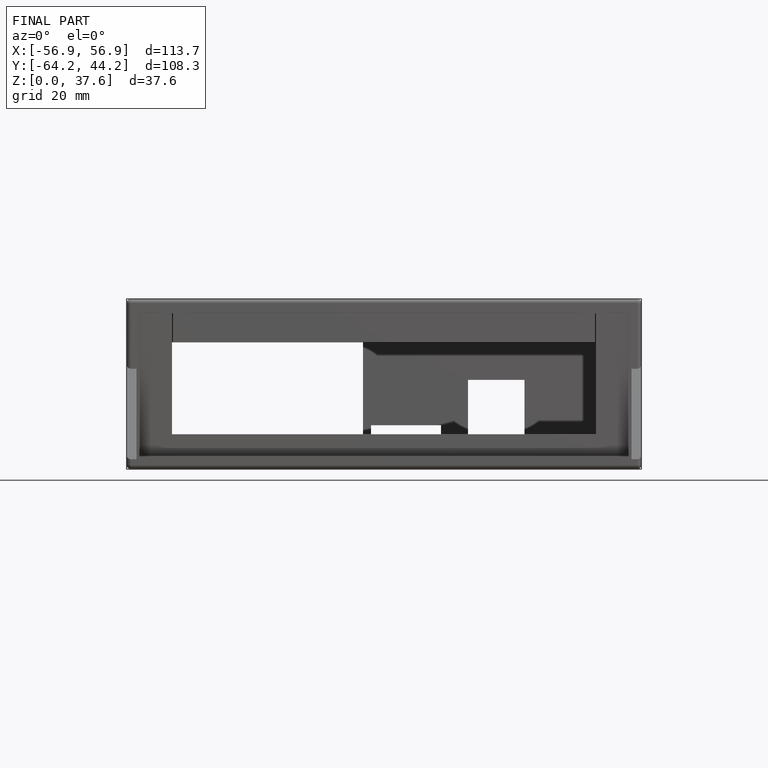
[diagram: finished part — front view with bounding-box wireframe]
